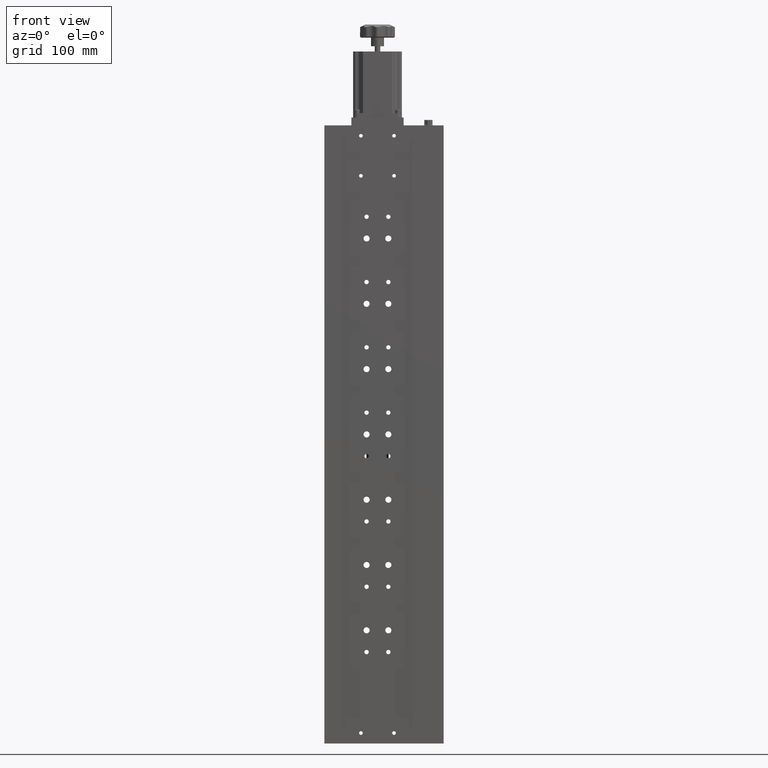
[diagram: clean part render]
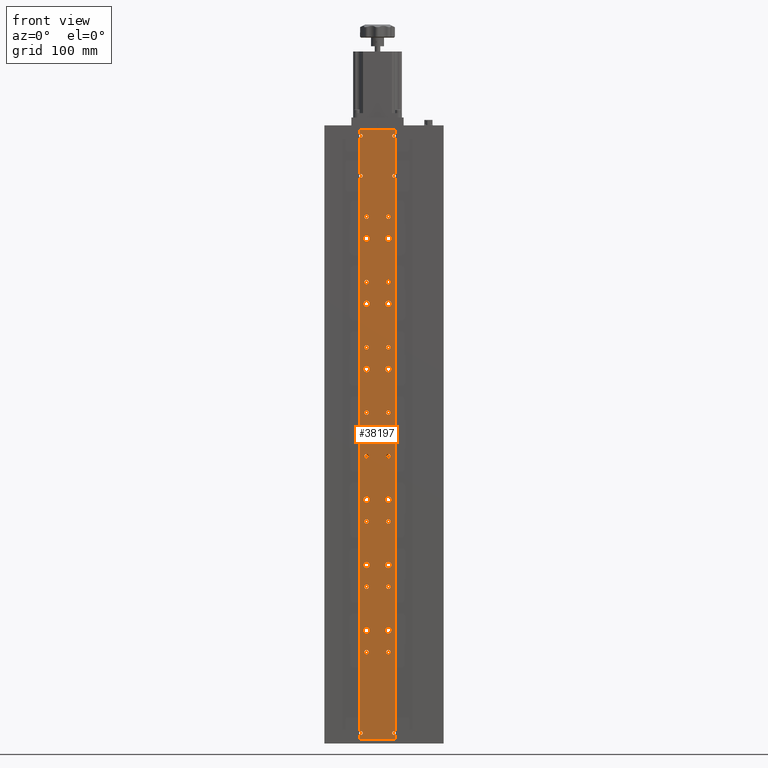
[diagram: same view with one face highlighted and labeled with its STEP entity id]
A machine part, front view. The second image highlights one B-rep face of the part: STEP entity #38197.
In plain terms, the highlighted planar face has unit normal (-0, 1, 0).
Its self-contained STEP definition (entity closure, byte-faithful):
#53 = AXIS2_PLACEMENT_3D ( 'NONE', #22278, #21691, #21295 ) ;
#75 = EDGE_CURVE ( 'NONE', #11428, #8911, #2200, .T. ) ;
#91 = CARTESIAN_POINT ( 'NONE',  ( -148.7356926832512700, -26.67012639631455100, -273.8342676332767400 ) ) ;
#95 = DIRECTION ( 'NONE',  ( -0.0000000000000000000, -1.000000000000000000, -0.0000000000000000000 ) ) ;
#158 = CARTESIAN_POINT ( 'NONE',  ( -148.7356926832512200, -26.67012639631455100, -327.3342676332767400 ) ) ;
#253 = EDGE_CURVE ( 'NONE', #24927, #21946, #33759, .T. ) ;
#277 = CARTESIAN_POINT ( 'NONE',  ( -148.7356926832512700, -26.67012639631455100, -148.8342676332766800 ) ) ;
#328 = DIRECTION ( 'NONE',  ( 0.0000000000000000000, 0.0000000000000000000, 1.000000000000000000 ) ) ;
#390 = CARTESIAN_POINT ( 'NONE',  ( -123.7356926832512400, -26.67012639631455100, 3.665732366723290200 ) ) ;
#443 = EDGE_LOOP ( 'NONE', ( #15177, #3842 ) ) ;
#544 = ORIENTED_EDGE ( 'NONE', *, *, #41521, .F. ) ;
#620 = ORIENTED_EDGE ( 'NONE', *, *, #23272, .T. ) ;
#665 = EDGE_LOOP ( 'NONE', ( #33870, #3079 ) ) ;
#699 = ORIENTED_EDGE ( 'NONE', *, *, #14846, .T. ) ;
#762 = DIRECTION ( 'NONE',  ( 0.0000000000000000000, 0.0000000000000000000, -1.000000000000000000 ) ) ;
#902 = ORIENTED_EDGE ( 'NONE', *, *, #10895, .T. ) ;
#911 = FACE_BOUND ( 'NONE', #34928, .T. ) ;
#994 = CARTESIAN_POINT ( 'NONE',  ( -156.2356926832512400, -26.67012639631455100, 96.01235089798521500 ) ) ;
#996 = DIRECTION ( 'NONE',  ( -0.0000000000000000000, -1.000000000000000000, -0.0000000000000000000 ) ) ;
#999 = AXIS2_PLACEMENT_3D ( 'NONE', #8951, #31300, #12186 ) ;
#1010 = DIRECTION ( 'NONE',  ( 0.0000000000000000000, 1.000000000000000000, 0.0000000000000000000 ) ) ;
#1021 = CIRCLE ( 'NONE', #8508, 2.500000000000002200 ) ;
#1057 = VERTEX_POINT ( 'NONE', #11969 ) ;
#1118 = ORIENTED_EDGE ( 'NONE', *, *, #34228, .T. ) ;
#1190 = DIRECTION ( 'NONE',  ( 0.0000000000000000000, 0.0000000000000000000, -1.000000000000000000 ) ) ;
#1271 = CARTESIAN_POINT ( 'NONE',  ( -123.7356926832513000, -26.67012639631455100, -173.8342676332766800 ) ) ;
#1284 = CIRCLE ( 'NONE', #18701, 3.500000000000003100 ) ;
#1345 = DIRECTION ( 'NONE',  ( 0.0000000000000000000, 0.0000000000000000000, 1.000000000000000000 ) ) ;
#1368 = VERTEX_POINT ( 'NONE', #26072 ) ;
#1376 = ORIENTED_EDGE ( 'NONE', *, *, #33331, .T. ) ;
#1379 = VERTEX_POINT ( 'NONE', #40516 ) ;
#1389 = AXIS2_PLACEMENT_3D ( 'NONE', #26806, #7649, #30076 ) ;
#1398 = DIRECTION ( 'NONE',  ( -0.0000000000000000000, 1.000000000000000000, -0.0000000000000000000 ) ) ;
#1459 = CARTESIAN_POINT ( 'NONE',  ( -117.2356926832512400, -26.67012639631455100, 48.16573236672327600 ) ) ;
#1469 = CARTESIAN_POINT ( 'NONE',  ( -117.2356926832512400, -26.67012639631455100, -591.8342676332765700 ) ) ;
#1476 = CARTESIAN_POINT ( 'NONE',  ( -116.2356926832512600, -26.67012639631455100, 46.31911383546133700 ) ) ;
#1502 = CARTESIAN_POINT ( 'NONE',  ( -156.2356926832512400, -26.67012639631455100, -638.9123164879802100 ) ) ;
#1510 = DIRECTION ( 'NONE',  ( 0.0000000000000000000, 0.0000000000000000000, 1.000000000000000000 ) ) ;
#1559 = VERTEX_POINT ( 'NONE', #28875 ) ;
#1583 = CARTESIAN_POINT ( 'NONE',  ( -123.7356926832512400, -26.67012639631455100, -1.334267633276703800 ) ) ;
#1611 = EDGE_CURVE ( 'NONE', #41240, #2821, #16442, .T. ) ;
#1626 = ORIENTED_EDGE ( 'NONE', *, *, #34588, .T. ) ;
#1771 = CARTESIAN_POINT ( 'NONE',  ( -117.2356926832512400, -26.67012639631455100, 92.06573236672326700 ) ) ;
#1790 = AXIS2_PLACEMENT_3D ( 'NONE', #3799, #26150, #6993 ) ;
#1832 = EDGE_CURVE ( 'NONE', #29612, #22916, #4863, .T. ) ;
#1835 = VERTEX_POINT ( 'NONE', #31451 ) ;
#1896 = FACE_BOUND ( 'NONE', #34371, .T. ) ;
#1934 = EDGE_LOOP ( 'NONE', ( #7785, #18819 ) ) ;
#1935 = CIRCLE ( 'NONE', #1790, 2.500000000000002200 ) ;
#2017 = DIRECTION ( 'NONE',  ( -0.0000000000000000000, 1.000000000000000000, -0.0000000000000000000 ) ) ;
#2200 = CIRCLE ( 'NONE', #33808, 2.099999999999990800 ) ;
#2203 = AXIS2_PLACEMENT_3D ( 'NONE', #31340, #12219, #34559 ) ;
#2249 = CIRCLE ( 'NONE', #34333, 2.500000000000002200 ) ;
#2343 = EDGE_CURVE ( 'NONE', #12844, #1559, #5726, .T. ) ;
#2421 = ORIENTED_EDGE ( 'NONE', *, *, #12542, .T. ) ;
#2444 = CARTESIAN_POINT ( 'NONE',  ( -148.7356926832512700, -26.67012639631455100, 1.165732366723293300 ) ) ;
#2563 = DIRECTION ( 'NONE',  ( 0.0000000000000000000, 0.0000000000000000000, -1.000000000000000000 ) ) ;
#2627 = DIRECTION ( 'NONE',  ( -3.029454718961576000E-018, 1.000000000000000000, 0.0000000000000000000 ) ) ;
#2716 = ORIENTED_EDGE ( 'NONE', *, *, #28717, .T. ) ;
#2721 = DIRECTION ( 'NONE',  ( 0.0000000000000000000, 1.000000000000000000, 0.0000000000000000000 ) ) ;
#2816 = DIRECTION ( 'NONE',  ( 0.0000000000000000000, 0.0000000000000000000, 1.000000000000000000 ) ) ;
#2821 = VERTEX_POINT ( 'NONE', #29269 ) ;
#2832 = CARTESIAN_POINT ( 'NONE',  ( -117.2356926832512400, -26.67012639631455100, 94.16573236672326200 ) ) ;
#2875 = CARTESIAN_POINT ( 'NONE',  ( -148.7356926832512700, -26.67012639631455100, -273.8342676332767400 ) ) ;
#2914 = FACE_BOUND ( 'NONE', #33409, .T. ) ;
#2959 = AXIS2_PLACEMENT_3D ( 'NONE', #15805, #38204, #19038 ) ;
#3035 = EDGE_CURVE ( 'NONE', #31467, #20491, #26598, .T. ) ;
#3079 = ORIENTED_EDGE ( 'NONE', *, *, #32834, .T. ) ;
#3148 = DIRECTION ( 'NONE',  ( 0.0000000000000000000, 0.0000000000000000000, 1.000000000000000000 ) ) ;
#3186 = CIRCLE ( 'NONE', #23383, 3.500000000000003100 ) ;
#3195 = EDGE_CURVE ( 'NONE', #33603, #1368, #3590, .T. ) ;
#3310 = CARTESIAN_POINT ( 'NONE',  ( -148.7356926832512200, -26.67012639631455100, -402.3342676332766800 ) ) ;
#3340 = DIRECTION ( 'NONE',  ( 0.0000000000000000000, 0.0000000000000000000, 1.000000000000000000 ) ) ;
#3348 = DIRECTION ( 'NONE',  ( 0.0000000000000000000, 1.000000000000000000, 0.0000000000000000000 ) ) ;
#3380 = CARTESIAN_POINT ( 'NONE',  ( -155.2356926832512400, -26.67012639631455100, -593.9342676332765900 ) ) ;
#3411 = EDGE_CURVE ( 'NONE', #40526, #14906, #21600, .T. ) ;
#3475 = AXIS2_PLACEMENT_3D ( 'NONE', #27440, #8260, #30668 ) ;
#3477 = DIRECTION ( 'NONE',  ( -0.0000000000000000000, -1.000000000000000000, -0.0000000000000000000 ) ) ;
#3482 = EDGE_CURVE ( 'NONE', #22916, #29612, #28064, .T. ) ;
#3533 = AXIS2_PLACEMENT_3D ( 'NONE', #9157, #9204, #9287 ) ;
#3550 = DIRECTION ( 'NONE',  ( 0.0000000000000000000, 0.0000000000000000000, 1.000000000000000000 ) ) ;
#3573 = CARTESIAN_POINT ( 'NONE',  ( -123.7356926832513000, -26.67012639631455100, -248.8342676332767100 ) ) ;
#3581 = DIRECTION ( 'NONE',  ( -0.0000000000000000000, 1.000000000000000000, -0.0000000000000000000 ) ) ;
#3590 = CIRCLE ( 'NONE', #4303, 2.500000000000002200 ) ;
#3598 = CARTESIAN_POINT ( 'NONE',  ( -123.7356926832512400, -26.67012639631455100, -426.3342676332766800 ) ) ;
#3673 = EDGE_CURVE ( 'NONE', #13408, #21896, #21071, .T. ) ;
#3681 = DIRECTION ( 'NONE',  ( -0.0000000000000000000, 1.000000000000000000, -0.0000000000000000000 ) ) ;
#3799 = CARTESIAN_POINT ( 'NONE',  ( -148.7356926832512700, -26.67012639631455100, -498.8342676332766800 ) ) ;
#3842 = ORIENTED_EDGE ( 'NONE', *, *, #40602, .T. ) ;
#3954 = FACE_BOUND ( 'NONE', #34951, .T. ) ;
#4124 = CIRCLE ( 'NONE', #13544, 2.500000000000002200 ) ;
#4184 = CIRCLE ( 'NONE', #11952, 2.099999999999990800 ) ;
#4217 = CIRCLE ( 'NONE', #34958, 2.099999999999997900 ) ;
#4220 = CARTESIAN_POINT ( 'NONE',  ( -123.7356926832512600, -26.67012639631455100, -271.3342676332767400 ) ) ;
#4261 = DIRECTION ( 'NONE',  ( 0.0000000000000000000, 0.0000000000000000000, 1.000000000000000000 ) ) ;
#4303 = AXIS2_PLACEMENT_3D ( 'NONE', #2875, #37570, #2816 ) ;
#4345 = ORIENTED_EDGE ( 'NONE', *, *, #17281, .F. ) ;
#4350 = EDGE_LOOP ( 'NONE', ( #12988, #1626 ) ) ;
#4371 = CIRCLE ( 'NONE', #32469, 2.500000000000002200 ) ;
#4507 = EDGE_CURVE ( 'NONE', #9306, #37895, #24745, .T. ) ;
#4579 = CARTESIAN_POINT ( 'NONE',  ( -116.2356926832512400, -26.67012639631455100, 92.31911383546132300 ) ) ;
#4654 = EDGE_CURVE ( 'NONE', #10521, #31629, #33242, .T. ) ;
#4656 = DIRECTION ( 'NONE',  ( 0.0000000000000000000, 0.0000000000000000000, 1.000000000000000000 ) ) ;
#4659 = CARTESIAN_POINT ( 'NONE',  ( -200.6106926832512400, -26.67012639631455100, -598.8342676332768000 ) ) ;
#4701 = DIRECTION ( 'NONE',  ( 0.0000000000000000000, 0.0000000000000000000, 1.000000000000000000 ) ) ;
#4726 = VERTEX_POINT ( 'NONE', #6646 ) ;
#4755 = CARTESIAN_POINT ( 'NONE',  ( -148.7356926832512200, -26.67012639631455100, -477.3342676332767400 ) ) ;
#4863 = CIRCLE ( 'NONE', #25144, 3.500000000000003100 ) ;
#4885 = VERTEX_POINT ( 'NONE', #37540 ) ;
#4924 = CIRCLE ( 'NONE', #33664, 2.500000000000002200 ) ;
#4953 = FACE_BOUND ( 'NONE', #33947, .T. ) ;
#4967 = ORIENTED_EDGE ( 'NONE', *, *, #19187, .T. ) ;
#4979 = CIRCLE ( 'NONE', #30520, 2.500000000000002200 ) ;
#5050 = VERTEX_POINT ( 'NONE', #40839 ) ;
#5137 = CARTESIAN_POINT ( 'NONE',  ( -148.7356926832512200, -26.67012639631455100, -177.3342676332767100 ) ) ;
#5251 = CARTESIAN_POINT ( 'NONE',  ( -123.7356926832512600, -26.67012639631455100, -223.8342676332766800 ) ) ;
#5277 = ORIENTED_EDGE ( 'NONE', *, *, #22565, .F. ) ;
#5320 = CARTESIAN_POINT ( 'NONE',  ( -123.7356926832513000, -26.67012639631455100, -177.3342676332767100 ) ) ;
#5454 = VERTEX_POINT ( 'NONE', #20742 ) ;
#5536 = CARTESIAN_POINT ( 'NONE',  ( -123.7356926832512400, -26.67012639631455100, -498.8342676332766800 ) ) ;
#5544 = CARTESIAN_POINT ( 'NONE',  ( -116.2356926832512400, -26.67012639631455100, -638.9123164879802100 ) ) ;
#5557 = ORIENTED_EDGE ( 'NONE', *, *, #29602, .T. ) ;
#5636 = VERTEX_POINT ( 'NONE', #5320 ) ;
#5671 = DIRECTION ( 'NONE',  ( 0.0000000000000000000, 0.0000000000000000000, 1.000000000000000000 ) ) ;
#5680 = EDGE_CURVE ( 'NONE', #21896, #23553, #7970, .T. ) ;
#5709 = AXIS2_PLACEMENT_3D ( 'NONE', #29957, #10773, #33171 ) ;
#5726 = CIRCLE ( 'NONE', #24110, 2.099999999999990800 ) ;
#5830 = AXIS2_PLACEMENT_3D ( 'NONE', #21229, #2017, #24406 ) ;
#5909 = EDGE_LOOP ( 'NONE', ( #11287, #23224 ) ) ;
#5910 = CARTESIAN_POINT ( 'NONE',  ( -123.7356926832512600, -26.67012639631455100, -273.8342676332767400 ) ) ;
#5924 = LINE ( 'NONE', #7337, #21990 ) ;
#5986 = CARTESIAN_POINT ( 'NONE',  ( -155.2356926832512400, -26.67012639631455100, -591.8342676332765700 ) ) ;
#6046 = VERTEX_POINT ( 'NONE', #24623 ) ;
#6060 = CIRCLE ( 'NONE', #7327, 3.500000000000003100 ) ;
#6068 = DIRECTION ( 'NONE',  ( 0.0000000000000000000, 0.0000000000000000000, 1.000000000000000000 ) ) ;
#6088 = DIRECTION ( 'NONE',  ( -0.0000000000000000000, 1.000000000000000000, -0.0000000000000000000 ) ) ;
#6093 = EDGE_CURVE ( 'NONE', #17578, #17966, #27497, .T. ) ;
#6180 = CARTESIAN_POINT ( 'NONE',  ( -148.7356926832512700, -26.67012639631455100, -498.8342676332766800 ) ) ;
#6247 = AXIS2_PLACEMENT_3D ( 'NONE', #25594, #6436, #28802 ) ;
#6357 = CARTESIAN_POINT ( 'NONE',  ( -123.7356926832512600, -26.67012639631455100, -348.8342676332767400 ) ) ;
#6380 = CIRCLE ( 'NONE', #6747, 2.500000000000002200 ) ;
#6392 = DIRECTION ( 'NONE',  ( -0.0000000000000000000, 1.000000000000000000, -0.0000000000000000000 ) ) ;
#6436 = DIRECTION ( 'NONE',  ( -0.0000000000000000000, 1.000000000000000000, -0.0000000000000000000 ) ) ;
#6646 = CARTESIAN_POINT ( 'NONE',  ( -123.7356926832513000, -26.67012639631455100, -27.33426763327669900 ) ) ;
#6679 = CARTESIAN_POINT ( 'NONE',  ( -155.2356926832512400, -26.67012639631455100, -589.7342676332766600 ) ) ;
#6702 = EDGE_CURVE ( 'NONE', #18470, #15842, #6847, .T. ) ;
#6742 = DIRECTION ( 'NONE',  ( 0.0000000000000000000, 0.0000000000000000000, -1.000000000000000000 ) ) ;
#6747 = AXIS2_PLACEMENT_3D ( 'NONE', #5910, #28287, #9146 ) ;
#6761 = VERTEX_POINT ( 'NONE', #28782 ) ;
#6818 = VERTEX_POINT ( 'NONE', #4579 ) ;
#6847 = CIRCLE ( 'NONE', #21131, 3.500000000000003100 ) ;
#6944 = CIRCLE ( 'NONE', #16276, 2.500000000000002200 ) ;
#6993 = DIRECTION ( 'NONE',  ( 0.0000000000000000000, 0.0000000000000000000, 1.000000000000000000 ) ) ;
#7014 = CIRCLE ( 'NONE', #5709, 3.500000000000003100 ) ;
#7061 = DIRECTION ( 'NONE',  ( -0.0000000000000000000, 1.000000000000000000, -0.0000000000000000000 ) ) ;
#7086 = CARTESIAN_POINT ( 'NONE',  ( -117.2356926832512400, -26.67012639631455100, 46.06573236672328200 ) ) ;
#7179 = VECTOR ( 'NONE', #8749, 1000.000000000000000 ) ;
#7277 = CARTESIAN_POINT ( 'NONE',  ( -123.7356926832513000, -26.67012639631455100, -252.3342676332767100 ) ) ;
#7327 = AXIS2_PLACEMENT_3D ( 'NONE', #34598, #34563, #10638 ) ;
#7337 = CARTESIAN_POINT ( 'NONE',  ( -116.2356926832512400, -26.67012639631455100, -638.9123164879802100 ) ) ;
#7508 = DIRECTION ( 'NONE',  ( 0.0000000000000000000, 0.0000000000000000000, 1.000000000000000000 ) ) ;
#7573 = CARTESIAN_POINT ( 'NONE',  ( -148.7356926832512700, -26.67012639631455100, -73.83426763327669600 ) ) ;
#7649 = DIRECTION ( 'NONE',  ( -0.0000000000000000000, 1.000000000000000000, -0.0000000000000000000 ) ) ;
#7785 = ORIENTED_EDGE ( 'NONE', *, *, #36785, .T. ) ;
#7826 = VERTEX_POINT ( 'NONE', #13300 ) ;
#7945 = CARTESIAN_POINT ( 'NONE',  ( -155.2356926832512700, -26.67012639631455100, 92.06573236672326700 ) ) ;
#7970 = CIRCLE ( 'NONE', #17309, 2.099999999999997900 ) ;
#7988 = VERTEX_POINT ( 'NONE', #21113 ) ;
#8106 = AXIS2_PLACEMENT_3D ( 'NONE', #31703, #3581, #18691 ) ;
#8121 = EDGE_CURVE ( 'NONE', #7826, #4885, #4371, .T. ) ;
#8215 = ORIENTED_EDGE ( 'NONE', *, *, #4507, .T. ) ;
#8260 = DIRECTION ( 'NONE',  ( -0.0000000000000000000, 1.000000000000000000, -0.0000000000000000000 ) ) ;
#8316 = EDGE_LOOP ( 'NONE', ( #29229, #37695 ) ) ;
#8360 = CARTESIAN_POINT ( 'NONE',  ( -148.7356926832512200, -26.67012639631455100, -98.83426763327671000 ) ) ;
#8378 = DIRECTION ( 'NONE',  ( -0.0000000000000000000, -1.000000000000000000, -0.0000000000000000000 ) ) ;
#8392 = CIRCLE ( 'NONE', #39548, 2.099999999999990800 ) ;
#8423 = FACE_BOUND ( 'NONE', #30315, .T. ) ;
#8484 = EDGE_CURVE ( 'NONE', #32101, #30683, #2249, .T. ) ;
#8508 = AXIS2_PLACEMENT_3D ( 'NONE', #7573, #30000, #10808 ) ;
#8537 = ORIENTED_EDGE ( 'NONE', *, *, #13867, .T. ) ;
#8638 = VERTEX_POINT ( 'NONE', #24810 ) ;
#8651 = DIRECTION ( 'NONE',  ( 0.0000000000000000000, 0.0000000000000000000, 1.000000000000000000 ) ) ;
#8737 = VECTOR ( 'NONE', #33273, 1000.000000000000000 ) ;
#8742 = DIRECTION ( 'NONE',  ( 0.0000000000000000000, 0.0000000000000000000, 1.000000000000000000 ) ) ;
#8749 = DIRECTION ( 'NONE',  ( 0.0000000000000000000, 0.0000000000000000000, 1.000000000000000000 ) ) ;
#8794 = EDGE_CURVE ( 'NONE', #32915, #5636, #3186, .T. ) ;
#8817 = AXIS2_PLACEMENT_3D ( 'NONE', #22842, #3681, #26037 ) ;
#8830 = CARTESIAN_POINT ( 'NONE',  ( -148.7356926832512200, -26.67012639631455100, -170.3342676332766800 ) ) ;
#8865 = ORIENTED_EDGE ( 'NONE', *, *, #29949, .T. ) ;
#8895 = CARTESIAN_POINT ( 'NONE',  ( -123.7356926832513000, -26.67012639631455100, -395.3342676332766800 ) ) ;
#8911 = VERTEX_POINT ( 'NONE', #38944 ) ;
#8951 = CARTESIAN_POINT ( 'NONE',  ( -123.7356926832513000, -26.67012639631455100, -398.8342676332766800 ) ) ;
#8969 = PLANE ( 'NONE',  #15675 ) ;
#8994 = ORIENTED_EDGE ( 'NONE', *, *, #37692, .T. ) ;
#9134 = DIRECTION ( 'NONE',  ( -0.0000000000000000000, 1.000000000000000000, -0.0000000000000000000 ) ) ;
#9138 = VERTEX_POINT ( 'NONE', #8830 ) ;
#9146 = DIRECTION ( 'NONE',  ( 0.0000000000000000000, 0.0000000000000000000, 1.000000000000000000 ) ) ;
#9157 = CARTESIAN_POINT ( 'NONE',  ( -123.7356926832512400, -26.67012639631455100, 1.165732366723293300 ) ) ;
#9193 = CARTESIAN_POINT ( 'NONE',  ( -148.7356926832512200, -26.67012639631455100, -23.83426763327670300 ) ) ;
#9204 = DIRECTION ( 'NONE',  ( -0.0000000000000000000, 1.000000000000000000, -0.0000000000000000000 ) ) ;
#9214 = DIRECTION ( 'NONE',  ( 0.0000000000000000000, 0.0000000000000000000, 1.000000000000000000 ) ) ;
#9259 = ORIENTED_EDGE ( 'NONE', *, *, #33687, .T. ) ;
#9287 = DIRECTION ( 'NONE',  ( 0.0000000000000000000, 0.0000000000000000000, 1.000000000000000000 ) ) ;
#9306 = VERTEX_POINT ( 'NONE', #38837 ) ;
#9388 = CARTESIAN_POINT ( 'NONE',  ( -148.7356926832512200, -26.67012639631455100, -98.83426763327671000 ) ) ;
#9405 = ORIENTED_EDGE ( 'NONE', *, *, #25949, .T. ) ;
#9435 = DIRECTION ( 'NONE',  ( 0.0000000000000000000, 0.0000000000000000000, 1.000000000000000000 ) ) ;
#9453 = FACE_BOUND ( 'NONE', #5909, .T. ) ;
#9509 = EDGE_CURVE ( 'NONE', #19770, #41451, #15683, .T. ) ;
#9520 = CIRCLE ( 'NONE', #29170, 2.500000000000002200 ) ;
#9555 = EDGE_LOOP ( 'NONE', ( #26406, #18892 ) ) ;
#9594 = ORIENTED_EDGE ( 'NONE', *, *, #26169, .T. ) ;
#9597 = DIRECTION ( 'NONE',  ( 0.0000000000000000000, 0.0000000000000000000, 1.000000000000000000 ) ) ;
#9641 = CARTESIAN_POINT ( 'NONE',  ( -148.7356926832512700, -26.67012639631455100, -73.83426763327669600 ) ) ;
#9705 = AXIS2_PLACEMENT_3D ( 'NONE', #6357, #28733, #9597 ) ;
#9794 = CARTESIAN_POINT ( 'NONE',  ( -123.7356926832512400, -26.67012639631455100, -76.33426763327669600 ) ) ;
#9866 = EDGE_LOOP ( 'NONE', ( #30876, #10828 ) ) ;
#9885 = VERTEX_POINT ( 'NONE', #39724 ) ;
#9973 = AXIS2_PLACEMENT_3D ( 'NONE', #12682, #12729, #13010 ) ;
#10005 = ORIENTED_EDGE ( 'NONE', *, *, #27172, .F. ) ;
#10074 = DIRECTION ( 'NONE',  ( 0.0000000000000000000, 1.000000000000000000, 0.0000000000000000000 ) ) ;
#10194 = EDGE_CURVE ( 'NONE', #31629, #10521, #6060, .T. ) ;
#10246 = CARTESIAN_POINT ( 'NONE',  ( -123.7356926832513000, -26.67012639631455100, -470.3342676332767400 ) ) ;
#10437 = FACE_BOUND ( 'NONE', #40258, .T. ) ;
#10521 = VERTEX_POINT ( 'NONE', #33439 ) ;
#10572 = AXIS2_PLACEMENT_3D ( 'NONE', #22558, #3348, #25717 ) ;
#10608 = DIRECTION ( 'NONE',  ( 0.0000000000000000000, 0.0000000000000000000, 1.000000000000000000 ) ) ;
#10616 = VERTEX_POINT ( 'NONE', #27265 ) ;
#10626 = VERTEX_POINT ( 'NONE', #27060 ) ;
#10633 = CIRCLE ( 'NONE', #12780, 2.500000000000002200 ) ;
#10635 = AXIS2_PLACEMENT_3D ( 'NONE', #15281, #15159, #15023 ) ;
#10638 = DIRECTION ( 'NONE',  ( 0.0000000000000000000, 0.0000000000000000000, 1.000000000000000000 ) ) ;
#10773 = DIRECTION ( 'NONE',  ( 0.0000000000000000000, 1.000000000000000000, 0.0000000000000000000 ) ) ;
#10803 = AXIS2_PLACEMENT_3D ( 'NONE', #11806, #95, #328 ) ;
#10808 = DIRECTION ( 'NONE',  ( 0.0000000000000000000, 0.0000000000000000000, 1.000000000000000000 ) ) ;
#10828 = ORIENTED_EDGE ( 'NONE', *, *, #23107, .T. ) ;
#10844 = DIRECTION ( 'NONE',  ( -0.0000000000000000000, 1.000000000000000000, -0.0000000000000000000 ) ) ;
#10895 = EDGE_CURVE ( 'NONE', #35582, #30382, #10633, .T. ) ;
#10903 = CARTESIAN_POINT ( 'NONE',  ( -148.7356926832512200, -26.67012639631455100, -473.8342676332767400 ) ) ;
#10915 = VERTEX_POINT ( 'NONE', #20111 ) ;
#11093 = DIRECTION ( 'NONE',  ( -0.0000000000000000000, 1.000000000000000000, -0.0000000000000000000 ) ) ;
#11099 = DIRECTION ( 'NONE',  ( -1.000000000000000000, -3.029454718961576000E-018, -0.0000000000000000000 ) ) ;
#11157 = CIRCLE ( 'NONE', #38015, 3.500000000000003100 ) ;
#11211 = ORIENTED_EDGE ( 'NONE', *, *, #20729, .T. ) ;
#11270 = ORIENTED_EDGE ( 'NONE', *, *, #34528, .T. ) ;
#11287 = ORIENTED_EDGE ( 'NONE', *, *, #29156, .T. ) ;
#11298 = CARTESIAN_POINT ( 'NONE',  ( -148.7356926832512700, -26.67012639631455100, -423.8342676332766800 ) ) ;
#11388 = ORIENTED_EDGE ( 'NONE', *, *, #27330, .T. ) ;
#11392 = EDGE_LOOP ( 'NONE', ( #11663, #16347 ) ) ;
#11428 = VERTEX_POINT ( 'NONE', #7945 ) ;
#11448 = FACE_BOUND ( 'NONE', #41424, .T. ) ;
#11576 = AXIS2_PLACEMENT_3D ( 'NONE', #9388, #3477, #1190 ) ;
#11595 = DIRECTION ( 'NONE',  ( -0.0000000000000000000, 1.000000000000000000, -0.0000000000000000000 ) ) ;
#11604 = DIRECTION ( 'NONE',  ( 0.0000000000000000000, 0.0000000000000000000, -1.000000000000000000 ) ) ;
#11663 = ORIENTED_EDGE ( 'NONE', *, *, #20028, .T. ) ;
#11806 = CARTESIAN_POINT ( 'NONE',  ( -123.7356926832513000, -26.67012639631455100, -323.8342676332767400 ) ) ;
#11902 = CIRCLE ( 'NONE', #17482, 3.500000000000003100 ) ;
#11924 = ORIENTED_EDGE ( 'NONE', *, *, #28701, .T. ) ;
#11952 = AXIS2_PLACEMENT_3D ( 'NONE', #41501, #22359, #3148 ) ;
#11960 = AXIS2_PLACEMENT_3D ( 'NONE', #13935, #36267, #17122 ) ;
#11969 = CARTESIAN_POINT ( 'NONE',  ( -148.7356926832512700, -26.67012639631455100, -71.33426763327668100 ) ) ;
#12156 = CARTESIAN_POINT ( 'NONE',  ( -123.7356926832512600, -26.67012639631455100, -346.3342676332767400 ) ) ;
#12186 = DIRECTION ( 'NONE',  ( 0.0000000000000000000, 0.0000000000000000000, 1.000000000000000000 ) ) ;
#12219 = DIRECTION ( 'NONE',  ( 0.0000000000000000000, 1.000000000000000000, 0.0000000000000000000 ) ) ;
#12380 = ORIENTED_EDGE ( 'NONE', *, *, #21088, .T. ) ;
#12449 = DIRECTION ( 'NONE',  ( 0.0000000000000000000, 0.0000000000000000000, -1.000000000000000000 ) ) ;
#12492 = FACE_BOUND ( 'NONE', #20373, .T. ) ;
#12519 = CARTESIAN_POINT ( 'NONE',  ( -148.7356926832512200, -26.67012639631455100, -173.8342676332766800 ) ) ;
#12530 = CIRCLE ( 'NONE', #25262, 2.500000000000002200 ) ;
#12540 = DIRECTION ( 'NONE',  ( 0.0000000000000000000, 1.000000000000000000, 0.0000000000000000000 ) ) ;
#12542 = EDGE_CURVE ( 'NONE', #26899, #37912, #28790, .T. ) ;
#12553 = CARTESIAN_POINT ( 'NONE',  ( -155.2356926832512700, -26.67012639631455100, 94.16573236672326200 ) ) ;
#12682 = CARTESIAN_POINT ( 'NONE',  ( -148.7356926832512200, -26.67012639631455100, -248.8342676332767100 ) ) ;
#12729 = DIRECTION ( 'NONE',  ( 0.0000000000000000000, 1.000000000000000000, 0.0000000000000000000 ) ) ;
#12747 = CIRCLE ( 'NONE', #24564, 3.499999999999999600 ) ;
#12780 = AXIS2_PLACEMENT_3D ( 'NONE', #19906, #19874, #19824 ) ;
#12844 = VERTEX_POINT ( 'NONE', #17512 ) ;
#12872 = AXIS2_PLACEMENT_3D ( 'NONE', #25256, #6088, #28496 ) ;
#12880 = DIRECTION ( 'NONE',  ( 0.0000000000000000000, 0.0000000000000000000, 1.000000000000000000 ) ) ;
#12920 = VECTOR ( 'NONE', #40463, 1000.000000000000000 ) ;
#12948 = VERTEX_POINT ( 'NONE', #40277 ) ;
#12980 = CARTESIAN_POINT ( 'NONE',  ( -117.2356926832512400, -26.67012639631455100, -591.8342676332765700 ) ) ;
#12988 = ORIENTED_EDGE ( 'NONE', *, *, #25455, .T. ) ;
#13010 = DIRECTION ( 'NONE',  ( 0.0000000000000000000, 0.0000000000000000000, 1.000000000000000000 ) ) ;
#13026 = DIRECTION ( 'NONE',  ( -0.0000000000000000000, -1.000000000000000000, -0.0000000000000000000 ) ) ;
#13044 = DIRECTION ( 'NONE',  ( -0.0000000000000000000, 1.000000000000000000, -0.0000000000000000000 ) ) ;
#13066 = CIRCLE ( 'NONE', #5830, 2.500000000000002200 ) ;
#13100 = VERTEX_POINT ( 'NONE', #21994 ) ;
#13113 = CARTESIAN_POINT ( 'NONE',  ( -148.7356926832512200, -26.67012639631455100, -398.8342676332766800 ) ) ;
#13201 = CARTESIAN_POINT ( 'NONE',  ( -123.7356926832512400, -26.67012639631455100, -73.83426763327669600 ) ) ;
#13241 = DIRECTION ( 'NONE',  ( -0.0000000000000000000, -1.000000000000000000, -0.0000000000000000000 ) ) ;
#13300 = CARTESIAN_POINT ( 'NONE',  ( -148.7356926832512700, -26.67012639631455100, -426.3342676332766800 ) ) ;
#13408 = VERTEX_POINT ( 'NONE', #7086 ) ;
#13422 = DIRECTION ( 'NONE',  ( -0.0000000000000000000, 1.000000000000000000, -0.0000000000000000000 ) ) ;
#13455 = VERTEX_POINT ( 'NONE', #36070 ) ;
#13457 = ORIENTED_EDGE ( 'NONE', *, *, #9509, .T. ) ;
#13544 = AXIS2_PLACEMENT_3D ( 'NONE', #9641, #32023, #12880 ) ;
#13654 = CARTESIAN_POINT ( 'NONE',  ( -123.7356926832512600, -26.67012639631455100, -148.8342676332766800 ) ) ;
#13860 = CIRCLE ( 'NONE', #2203, 3.500000000000003100 ) ;
#13867 = EDGE_CURVE ( 'NONE', #30382, #35582, #21223, .T. ) ;
#13876 = EDGE_CURVE ( 'NONE', #29843, #10626, #17195, .T. ) ;
#13935 = CARTESIAN_POINT ( 'NONE',  ( -123.7356926832512400, -26.67012639631455100, -73.83426763327669600 ) ) ;
#13985 = ORIENTED_EDGE ( 'NONE', *, *, #23581, .T. ) ;
#14091 = CIRCLE ( 'NONE', #36580, 2.099999999999990800 ) ;
#14167 = DIRECTION ( 'NONE',  ( 0.0000000000000000000, 0.0000000000000000000, 1.000000000000000000 ) ) ;
#14174 = AXIS2_PLACEMENT_3D ( 'NONE', #29219, #10074, #32457 ) ;
#14292 = AXIS2_PLACEMENT_3D ( 'NONE', #15069, #37417, #18243 ) ;
#14396 = DIRECTION ( 'NONE',  ( -0.0000000000000000000, 1.000000000000000000, -0.0000000000000000000 ) ) ;
#14431 = ORIENTED_EDGE ( 'NONE', *, *, #30808, .T. ) ;
#14496 = FACE_BOUND ( 'NONE', #665, .T. ) ;
#14507 = CIRCLE ( 'NONE', #14174, 3.500000000000003100 ) ;
#14557 = EDGE_CURVE ( 'NONE', #5636, #32915, #7014, .T. ) ;
#14564 = DIRECTION ( 'NONE',  ( 0.0000000000000000000, 0.0000000000000000000, 1.000000000000000000 ) ) ;
#14642 = AXIS2_PLACEMENT_3D ( 'NONE', #37332, #18167, #40557 ) ;
#14665 = VECTOR ( 'NONE', #22227, 1000.000000000000000 ) ;
#14752 = CARTESIAN_POINT ( 'NONE',  ( -116.2356926832512400, -26.67012639631455100, -638.9123164879802100 ) ) ;
#14763 = AXIS2_PLACEMENT_3D ( 'NONE', #12553, #34857, #15725 ) ;
#14818 = EDGE_CURVE ( 'NONE', #27427, #37993, #16008, .T. ) ;
#14846 = EDGE_CURVE ( 'NONE', #4726, #39274, #40512, .T. ) ;
#14906 = VERTEX_POINT ( 'NONE', #390 ) ;
#14958 = CARTESIAN_POINT ( 'NONE',  ( -123.7356926832512400, -26.67012639631455100, -498.8342676332766800 ) ) ;
#15023 = DIRECTION ( 'NONE',  ( 0.0000000000000000000, 0.0000000000000000000, 1.000000000000000000 ) ) ;
#15069 = CARTESIAN_POINT ( 'NONE',  ( -123.7356926832513000, -26.67012639631455100, -398.8342676332766800 ) ) ;
#15151 = ORIENTED_EDGE ( 'NONE', *, *, #10194, .F. ) ;
#15159 = DIRECTION ( 'NONE',  ( 0.0000000000000000000, 1.000000000000000000, 0.0000000000000000000 ) ) ;
#15177 = ORIENTED_EDGE ( 'NONE', *, *, #6093, .T. ) ;
#15281 = CARTESIAN_POINT ( 'NONE',  ( -148.7356926832512200, -26.67012639631455100, -323.8342676332767400 ) ) ;
#15317 = ORIENTED_EDGE ( 'NONE', *, *, #39276, .T. ) ;
#15442 = EDGE_CURVE ( 'NONE', #12948, #29843, #8392, .T. ) ;
#15675 = AXIS2_PLACEMENT_3D ( 'NONE', #21848, #2627, #25036 ) ;
#15683 = CIRCLE ( 'NONE', #53, 3.500000000000003100 ) ;
#15698 = DIRECTION ( 'NONE',  ( 0.0000000000000000000, 0.0000000000000000000, -1.000000000000000000 ) ) ;
#15710 = CARTESIAN_POINT ( 'NONE',  ( -123.7356926832512400, -26.67012639631455100, -496.3342676332766800 ) ) ;
#15725 = DIRECTION ( 'NONE',  ( 0.0000000000000000000, 0.0000000000000000000, 1.000000000000000000 ) ) ;
#15805 = CARTESIAN_POINT ( 'NONE',  ( -123.7356926832512400, -26.67012639631455100, -423.8342676332766800 ) ) ;
#15842 = VERTEX_POINT ( 'NONE', #10246 ) ;
#15858 = ORIENTED_EDGE ( 'NONE', *, *, #27485, .T. ) ;
#15916 = VERTEX_POINT ( 'NONE', #7277 ) ;
#15945 = CARTESIAN_POINT ( 'NONE',  ( -123.7356926832513000, -26.67012639631455100, -20.33426763327670300 ) ) ;
#15956 = FACE_BOUND ( 'NONE', #27035, .T. ) ;
#16008 = CIRCLE ( 'NONE', #6247, 2.500000000000002200 ) ;
#16053 = ORIENTED_EDGE ( 'NONE', *, *, #2343, .T. ) ;
#16150 = CARTESIAN_POINT ( 'NONE',  ( -148.7356926832512700, -26.67012639631455100, -1.334267633276703800 ) ) ;
#16172 = DIRECTION ( 'NONE',  ( 0.0000000000000000000, 0.0000000000000000000, 1.000000000000000000 ) ) ;
#16197 = EDGE_LOOP ( 'NONE', ( #15858, #1376 ) ) ;
#16261 = DIRECTION ( 'NONE',  ( 0.0000000000000000000, 0.0000000000000000000, 1.000000000000000000 ) ) ;
#16276 = AXIS2_PLACEMENT_3D ( 'NONE', #32170, #13044, #35373 ) ;
#16300 = DIRECTION ( 'NONE',  ( 0.0000000000000000000, 0.0000000000000000000, 1.000000000000000000 ) ) ;
#16305 = DIRECTION ( 'NONE',  ( -0.0000000000000000000, 1.000000000000000000, -0.0000000000000000000 ) ) ;
#16347 = ORIENTED_EDGE ( 'NONE', *, *, #17199, .T. ) ;
#16356 = EDGE_CURVE ( 'NONE', #9138, #35421, #35940, .T. ) ;
#16398 = CARTESIAN_POINT ( 'NONE',  ( -148.7356926832512700, -26.67012639631455100, -346.3342676332767400 ) ) ;
#16399 = DIRECTION ( 'NONE',  ( 0.0000000000000000000, 0.0000000000000000000, 1.000000000000000000 ) ) ;
#16406 = CARTESIAN_POINT ( 'NONE',  ( -156.2356926832512400, -26.67012639631455100, 50.01235089798522200 ) ) ;
#16442 = CIRCLE ( 'NONE', #8106, 2.099999999999997900 ) ;
#16467 = CARTESIAN_POINT ( 'NONE',  ( -148.7356926832512700, -26.67012639631455100, -423.8342676332766800 ) ) ;
#16521 = CARTESIAN_POINT ( 'NONE',  ( -117.2356926832512400, -26.67012639631455100, 48.16573236672327600 ) ) ;
#16606 = AXIS2_PLACEMENT_3D ( 'NONE', #5536, #27910, #8742 ) ;
#16790 = EDGE_CURVE ( 'NONE', #21731, #1835, #23849, .T. ) ;
#16801 = CARTESIAN_POINT ( 'NONE',  ( -117.2356926832512400, -26.67012639631455100, 94.16573236672326200 ) ) ;
#16830 = DIRECTION ( 'NONE',  ( 0.0000000000000000000, 0.0000000000000000000, 1.000000000000000000 ) ) ;
#16961 = VERTEX_POINT ( 'NONE', #21551 ) ;
#16969 = FACE_BOUND ( 'NONE', #22231, .T. ) ;
#17044 = CARTESIAN_POINT ( 'NONE',  ( -123.7356926832512600, -26.67012639631455100, -273.8342676332767400 ) ) ;
#17091 = CARTESIAN_POINT ( 'NONE',  ( -155.2356926832512400, -26.67012639631455100, -591.8342676332765700 ) ) ;
#17122 = DIRECTION ( 'NONE',  ( 0.0000000000000000000, 0.0000000000000000000, 1.000000000000000000 ) ) ;
#17195 = CIRCLE ( 'NONE', #22595, 2.099999999999990800 ) ;
#17199 = EDGE_CURVE ( 'NONE', #13455, #36447, #24768, .T. ) ;
#17281 = EDGE_CURVE ( 'NONE', #21946, #24927, #1284, .T. ) ;
#17309 = AXIS2_PLACEMENT_3D ( 'NONE', #1459, #1398, #1345 ) ;
#17482 = AXIS2_PLACEMENT_3D ( 'NONE', #13113, #35457, #16300 ) ;
#17512 = CARTESIAN_POINT ( 'NONE',  ( -117.2356926832512400, -26.67012639631455100, 96.26573236672325600 ) ) ;
#17553 = ORIENTED_EDGE ( 'NONE', *, *, #35324, .T. ) ;
#17578 = VERTEX_POINT ( 'NONE', #28916 ) ;
#17580 = ORIENTED_EDGE ( 'NONE', *, *, #20833, .T. ) ;
#17697 = LINE ( 'NONE', #40908, #33719 ) ;
#17701 = DIRECTION ( 'NONE',  ( 0.0000000000000000000, 1.000000000000000000, 0.0000000000000000000 ) ) ;
#17757 = EDGE_CURVE ( 'NONE', #27394, #20898, #36781, .T. ) ;
#17770 = ORIENTED_EDGE ( 'NONE', *, *, #5680, .T. ) ;
#17815 = EDGE_CURVE ( 'NONE', #23553, #6818, #32750, .T. ) ;
#17835 = EDGE_LOOP ( 'NONE', ( #8994, #27595 ) ) ;
#17956 = FACE_BOUND ( 'NONE', #443, .T. ) ;
#17966 = VERTEX_POINT ( 'NONE', #158 ) ;
#18109 = CARTESIAN_POINT ( 'NONE',  ( -148.7356926832512200, -26.67012639631455100, -323.8342676332767400 ) ) ;
#18130 = DIRECTION ( 'NONE',  ( 0.0000000000000000000, 0.0000000000000000000, 1.000000000000000000 ) ) ;
#18167 = DIRECTION ( 'NONE',  ( 0.0000000000000000000, 1.000000000000000000, 0.0000000000000000000 ) ) ;
#18243 = DIRECTION ( 'NONE',  ( 0.0000000000000000000, 0.0000000000000000000, 1.000000000000000000 ) ) ;
#18463 = VERTEX_POINT ( 'NONE', #16398 ) ;
#18470 = VERTEX_POINT ( 'NONE', #19615 ) ;
#18483 = CARTESIAN_POINT ( 'NONE',  ( -148.7356926832512200, -26.67012639631455100, -95.33426763327671000 ) ) ;
#18573 = EDGE_LOOP ( 'NONE', ( #13985, #34671 ) ) ;
#18691 = DIRECTION ( 'NONE',  ( 0.0000000000000000000, 0.0000000000000000000, 1.000000000000000000 ) ) ;
#18701 = AXIS2_PLACEMENT_3D ( 'NONE', #8360, #30756, #11604 ) ;
#18771 = ORIENTED_EDGE ( 'NONE', *, *, #17815, .T. ) ;
#18794 = CARTESIAN_POINT ( 'NONE',  ( -148.7356926832512700, -26.67012639631455100, -76.33426763327669600 ) ) ;
#18819 = ORIENTED_EDGE ( 'NONE', *, *, #3195, .T. ) ;
#18892 = ORIENTED_EDGE ( 'NONE', *, *, #23205, .T. ) ;
#18958 = FACE_BOUND ( 'NONE', #9555, .T. ) ;
#18992 = VERTEX_POINT ( 'NONE', #3310 ) ;
#19038 = DIRECTION ( 'NONE',  ( 0.0000000000000000000, 0.0000000000000000000, 1.000000000000000000 ) ) ;
#19187 = EDGE_CURVE ( 'NONE', #10626, #24534, #5924, .T. ) ;
#19615 = CARTESIAN_POINT ( 'NONE',  ( -123.7356926832513000, -26.67012639631455100, -477.3342676332767400 ) ) ;
#19770 = VERTEX_POINT ( 'NONE', #30279 ) ;
#19824 = DIRECTION ( 'NONE',  ( 0.0000000000000000000, 0.0000000000000000000, 1.000000000000000000 ) ) ;
#19874 = DIRECTION ( 'NONE',  ( -0.0000000000000000000, 1.000000000000000000, -0.0000000000000000000 ) ) ;
#19906 = CARTESIAN_POINT ( 'NONE',  ( -123.7356926832512600, -26.67012639631455100, -348.8342676332767400 ) ) ;
#19965 = FACE_BOUND ( 'NONE', #16197, .T. ) ;
#20016 = DIRECTION ( 'NONE',  ( 0.0000000000000000000, 0.0000000000000000000, 1.000000000000000000 ) ) ;
#20028 = EDGE_CURVE ( 'NONE', #36447, #13455, #6380, .T. ) ;
#20045 = CIRCLE ( 'NONE', #3475, 2.500000000000002200 ) ;
#20111 = CARTESIAN_POINT ( 'NONE',  ( -155.2356926832512700, -26.67012639631455100, 96.26573236672325600 ) ) ;
#20142 = AXIS2_PLACEMENT_3D ( 'NONE', #91, #22551, #3340 ) ;
#20176 = CARTESIAN_POINT ( 'NONE',  ( -148.7356926832512200, -26.67012639631455100, -173.8342676332766800 ) ) ;
#20273 = DIRECTION ( 'NONE',  ( 0.0000000000000000000, 0.0000000000000000000, 1.000000000000000000 ) ) ;
#20300 = CIRCLE ( 'NONE', #20142, 2.500000000000002200 ) ;
#20373 = EDGE_LOOP ( 'NONE', ( #20986, #15317 ) ) ;
#20405 = VERTEX_POINT ( 'NONE', #24760 ) ;
#20465 = EDGE_CURVE ( 'NONE', #1379, #15916, #13860, .T. ) ;
#20491 = VERTEX_POINT ( 'NONE', #25049 ) ;
#20596 = VERTEX_POINT ( 'NONE', #9794 ) ;
#20729 = EDGE_CURVE ( 'NONE', #41451, #19770, #32279, .T. ) ;
#20742 = CARTESIAN_POINT ( 'NONE',  ( -148.7356926832512700, -26.67012639631455100, -151.3342676332766800 ) ) ;
#20832 = VECTOR ( 'NONE', #24802, 1000.000000000000000 ) ;
#20833 = EDGE_CURVE ( 'NONE', #24534, #13408, #4217, .T. ) ;
#20898 = VERTEX_POINT ( 'NONE', #40537 ) ;
#20977 = ORIENTED_EDGE ( 'NONE', *, *, #3482, .T. ) ;
#20986 = ORIENTED_EDGE ( 'NONE', *, *, #27099, .T. ) ;
#20990 = FACE_BOUND ( 'NONE', #18573, .T. ) ;
#21022 = AXIS2_PLACEMENT_3D ( 'NONE', #30253, #11093, #33493 ) ;
#21071 = CIRCLE ( 'NONE', #37842, 2.099999999999997900 ) ;
#21088 = EDGE_CURVE ( 'NONE', #8638, #12948, #4184, .T. ) ;
#21113 = CARTESIAN_POINT ( 'NONE',  ( -148.7356926832512700, -26.67012639631455100, -496.3342676332766800 ) ) ;
#21121 = ORIENTED_EDGE ( 'NONE', *, *, #75, .T. ) ;
#21131 = AXIS2_PLACEMENT_3D ( 'NONE', #41122, #13026, #8651 ) ;
#21223 = CIRCLE ( 'NONE', #9705, 2.500000000000002200 ) ;
#21229 = CARTESIAN_POINT ( 'NONE',  ( -123.7356926832512400, -26.67012639631455100, -423.8342676332766800 ) ) ;
#21295 = DIRECTION ( 'NONE',  ( 0.0000000000000000000, 0.0000000000000000000, 1.000000000000000000 ) ) ;
#21346 = DIRECTION ( 'NONE',  ( 0.0000000000000000000, 0.0000000000000000000, 1.000000000000000000 ) ) ;
#21551 = CARTESIAN_POINT ( 'NONE',  ( -148.7356926832512200, -26.67012639631455100, -20.33426763327670300 ) ) ;
#21583 = LINE ( 'NONE', #4659, #37580 ) ;
#21600 = CIRCLE ( 'NONE', #3533, 2.499999999999996900 ) ;
#21691 = DIRECTION ( 'NONE',  ( 0.0000000000000000000, 1.000000000000000000, 0.0000000000000000000 ) ) ;
#21728 = EDGE_LOOP ( 'NONE', ( #5277, #26056 ) ) ;
#21731 = VERTEX_POINT ( 'NONE', #39331 ) ;
#21744 = CARTESIAN_POINT ( 'NONE',  ( -156.2356926832512400, -26.67012639631455100, -638.9123164879802100 ) ) ;
#21848 = CARTESIAN_POINT ( 'NONE',  ( -200.6106926832512400, -26.67012639631455100, -598.8342676332768000 ) ) ;
#21896 = VERTEX_POINT ( 'NONE', #24615 ) ;
#21946 = VERTEX_POINT ( 'NONE', #18483 ) ;
#21950 = VERTEX_POINT ( 'NONE', #24896 ) ;
#21990 = VECTOR ( 'NONE', #10608, 1000.000000000000000 ) ;
#21994 = CARTESIAN_POINT ( 'NONE',  ( -148.7356926832512700, -26.67012639631455100, -501.3342676332766800 ) ) ;
#22065 = EDGE_CURVE ( 'NONE', #18463, #39309, #6944, .T. ) ;
#22145 = EDGE_CURVE ( 'NONE', #9885, #6046, #14507, .T. ) ;
#22191 = ORIENTED_EDGE ( 'NONE', *, *, #25098, .T. ) ;
#22227 = DIRECTION ( 'NONE',  ( 0.0000000000000000000, 0.0000000000000000000, 1.000000000000000000 ) ) ;
#22231 = EDGE_LOOP ( 'NONE', ( #40280, #1118 ) ) ;
#22278 = CARTESIAN_POINT ( 'NONE',  ( -148.7356926832512200, -26.67012639631455100, -473.8342676332767400 ) ) ;
#22337 = VERTEX_POINT ( 'NONE', #32886 ) ;
#22359 = DIRECTION ( 'NONE',  ( -0.0000000000000000000, 1.000000000000000000, -0.0000000000000000000 ) ) ;
#22551 = DIRECTION ( 'NONE',  ( -0.0000000000000000000, 1.000000000000000000, -0.0000000000000000000 ) ) ;
#22558 = CARTESIAN_POINT ( 'NONE',  ( -123.7356926832513000, -26.67012639631455100, -23.83426763327670300 ) ) ;
#22565 = EDGE_CURVE ( 'NONE', #34124, #6761, #38137, .T. ) ;
#22595 = AXIS2_PLACEMENT_3D ( 'NONE', #12980, #35302, #16172 ) ;
#22720 = DIRECTION ( 'NONE',  ( -0.0000000000000000000, 1.000000000000000000, -0.0000000000000000000 ) ) ;
#22842 = CARTESIAN_POINT ( 'NONE',  ( -148.7356926832512700, -26.67012639631455100, -148.8342676332766800 ) ) ;
#22916 = VERTEX_POINT ( 'NONE', #23322 ) ;
#22979 = FACE_BOUND ( 'NONE', #1934, .T. ) ;
#22988 = CIRCLE ( 'NONE', #28124, 2.500000000000002200 ) ;
#23008 = ORIENTED_EDGE ( 'NONE', *, *, #3411, .T. ) ;
#23107 = EDGE_CURVE ( 'NONE', #26572, #27830, #13066, .T. ) ;
#23205 = EDGE_CURVE ( 'NONE', #20898, #27394, #33561, .T. ) ;
#23210 = EDGE_CURVE ( 'NONE', #20491, #31467, #25025, .T. ) ;
#23224 = ORIENTED_EDGE ( 'NONE', *, *, #31235, .T. ) ;
#23272 = EDGE_CURVE ( 'NONE', #41499, #12844, #28535, .T. ) ;
#23322 = CARTESIAN_POINT ( 'NONE',  ( -148.7356926832512200, -26.67012639631455100, -252.3342676332767100 ) ) ;
#23345 = AXIS2_PLACEMENT_3D ( 'NONE', #32572, #13422, #35744 ) ;
#23350 = CARTESIAN_POINT ( 'NONE',  ( -117.2356926832512400, -26.67012639631455100, -589.7342676332766600 ) ) ;
#23383 = AXIS2_PLACEMENT_3D ( 'NONE', #1271, #1010, #762 ) ;
#23395 = DIRECTION ( 'NONE',  ( 0.0000000000000000000, 0.0000000000000000000, -1.000000000000000000 ) ) ;
#23406 = EDGE_CURVE ( 'NONE', #16961, #28787, #36544, .T. ) ;
#23525 = ORIENTED_EDGE ( 'NONE', *, *, #36397, .F. ) ;
#23553 = VERTEX_POINT ( 'NONE', #40049 ) ;
#23581 = EDGE_CURVE ( 'NONE', #37993, #27427, #20045, .T. ) ;
#23587 = ORIENTED_EDGE ( 'NONE', *, *, #29884, .T. ) ;
#23806 = ORIENTED_EDGE ( 'NONE', *, *, #41121, .T. ) ;
#23849 = LINE ( 'NONE', #1502, #40873 ) ;
#23856 = DIRECTION ( 'NONE',  ( -0.0000000000000000000, 1.000000000000000000, -0.0000000000000000000 ) ) ;
#23900 = DIRECTION ( 'NONE',  ( 0.0000000000000000000, 0.0000000000000000000, -1.000000000000000000 ) ) ;
#24002 = ORIENTED_EDGE ( 'NONE', *, *, #1611, .T. ) ;
#24031 = ORIENTED_EDGE ( 'NONE', *, *, #36193, .T. ) ;
#24110 = AXIS2_PLACEMENT_3D ( 'NONE', #38331, #37927, #36516 ) ;
#24164 = AXIS2_PLACEMENT_3D ( 'NONE', #9193, #31583, #12449 ) ;
#24260 = DIRECTION ( 'NONE',  ( -0.0000000000000000000, 1.000000000000000000, -0.0000000000000000000 ) ) ;
#24286 = CIRCLE ( 'NONE', #2959, 2.500000000000002200 ) ;
#24340 = AXIS2_PLACEMENT_3D ( 'NONE', #33559, #14396, #36782 ) ;
#24406 = DIRECTION ( 'NONE',  ( 0.0000000000000000000, 0.0000000000000000000, 1.000000000000000000 ) ) ;
#24433 = FACE_BOUND ( 'NONE', #21728, .T. ) ;
#24534 = VERTEX_POINT ( 'NONE', #1476 ) ;
#24564 = AXIS2_PLACEMENT_3D ( 'NONE', #31656, #12540, #34844 ) ;
#24615 = CARTESIAN_POINT ( 'NONE',  ( -117.2356926832512400, -26.67012639631455100, 50.26573236672327700 ) ) ;
#24623 = CARTESIAN_POINT ( 'NONE',  ( -123.7356926832513000, -26.67012639631455100, -95.33426763327671000 ) ) ;
#24745 = LINE ( 'NONE', #31199, #8737 ) ;
#24760 = CARTESIAN_POINT ( 'NONE',  ( -148.7356926832512700, -26.67012639631455100, -146.3342676332766800 ) ) ;
#24768 = CIRCLE ( 'NONE', #38785, 2.500000000000002200 ) ;
#24780 = CARTESIAN_POINT ( 'NONE',  ( -123.7356926832512400, -26.67012639631455100, -71.33426763327668100 ) ) ;
#24802 = DIRECTION ( 'NONE',  ( -1.000000000000000000, -3.029454718961576000E-018, -0.0000000000000000000 ) ) ;
#24810 = CARTESIAN_POINT ( 'NONE',  ( -116.2356926832512600, -26.67012639631455100, -593.6808861645386100 ) ) ;
#24816 = DIRECTION ( 'NONE',  ( -0.0000000000000000000, 1.000000000000000000, -0.0000000000000000000 ) ) ;
#24896 = CARTESIAN_POINT ( 'NONE',  ( -155.2356926832512400, -26.67012639631455100, 46.06573236672328200 ) ) ;
#24927 = VERTEX_POINT ( 'NONE', #33544 ) ;
#24946 = ORIENTED_EDGE ( 'NONE', *, *, #6702, .F. ) ;
#24957 = CARTESIAN_POINT ( 'NONE',  ( -123.7356926832512600, -26.67012639631455100, -226.3342676332766800 ) ) ;
#25025 = CIRCLE ( 'NONE', #25148, 2.499999999999996900 ) ;
#25036 = DIRECTION ( 'NONE',  ( -1.000000000000000000, -3.029454718961576000E-018, 0.0000000000000000000 ) ) ;
#25049 = CARTESIAN_POINT ( 'NONE',  ( -148.7356926832512700, -26.67012639631455100, 3.665732366723290200 ) ) ;
#25098 = EDGE_CURVE ( 'NONE', #8911, #41240, #17697, .T. ) ;
#25103 = EDGE_LOOP ( 'NONE', ( #39887, #11388 ) ) ;
#25144 = AXIS2_PLACEMENT_3D ( 'NONE', #34981, #2721, #26692 ) ;
#25148 = AXIS2_PLACEMENT_3D ( 'NONE', #2444, #24816, #5671 ) ;
#25242 = DIRECTION ( 'NONE',  ( -0.0000000000000000000, 1.000000000000000000, -0.0000000000000000000 ) ) ;
#25256 = CARTESIAN_POINT ( 'NONE',  ( -155.2356926832512400, -26.67012639631455100, -591.8342676332765700 ) ) ;
#25262 = AXIS2_PLACEMENT_3D ( 'NONE', #6180, #28589, #9435 ) ;
#25446 = FACE_BOUND ( 'NONE', #36225, .T. ) ;
#25455 = EDGE_CURVE ( 'NONE', #5050, #33824, #31059, .T. ) ;
#25488 = CARTESIAN_POINT ( 'NONE',  ( -148.7356926832512700, -26.67012639631455100, -226.3342676332766800 ) ) ;
#25491 = AXIS2_PLACEMENT_3D ( 'NONE', #26222, #7061, #29483 ) ;
#25514 = ORIENTED_EDGE ( 'NONE', *, *, #8121, .T. ) ;
#25569 = CARTESIAN_POINT ( 'NONE',  ( -148.7356926832512700, -26.67012639631455100, -351.3342676332767400 ) ) ;
#25594 = CARTESIAN_POINT ( 'NONE',  ( -148.7356926832512700, -26.67012639631455100, -223.8342676332766800 ) ) ;
#25614 = EDGE_LOOP ( 'NONE', ( #39872, #23587, #32423, #9259, #2421, #10005, #5557, #12380, #39716, #27902, #4967, #17580, #27547, #17770, #18771, #9405, #620, #16053, #32944, #32399, #8215, #24031, #8865, #21121, #22191, #24002, #2716, #17553 ) ) ;
#25717 = DIRECTION ( 'NONE',  ( 0.0000000000000000000, 0.0000000000000000000, -1.000000000000000000 ) ) ;
#25757 = AXIS2_PLACEMENT_3D ( 'NONE', #36884, #17701, #40086 ) ;
#25926 = DIRECTION ( 'NONE',  ( 0.0000000000000000000, 1.000000000000000000, 0.0000000000000000000 ) ) ;
#25949 = EDGE_CURVE ( 'NONE', #6818, #41499, #14091, .T. ) ;
#26037 = DIRECTION ( 'NONE',  ( 0.0000000000000000000, 0.0000000000000000000, 1.000000000000000000 ) ) ;
#26056 = ORIENTED_EDGE ( 'NONE', *, *, #31282, .F. ) ;
#26072 = CARTESIAN_POINT ( 'NONE',  ( -148.7356926832512700, -26.67012639631455100, -271.3342676332767400 ) ) ;
#26150 = DIRECTION ( 'NONE',  ( -0.0000000000000000000, 1.000000000000000000, -0.0000000000000000000 ) ) ;
#26169 = EDGE_CURVE ( 'NONE', #4885, #7826, #36036, .T. ) ;
#26222 = CARTESIAN_POINT ( 'NONE',  ( -155.2356926832512400, -26.67012639631455100, 48.16573236672327600 ) ) ;
#26406 = ORIENTED_EDGE ( 'NONE', *, *, #17757, .T. ) ;
#26455 = FACE_BOUND ( 'NONE', #38311, .T. ) ;
#26548 = AXIS2_PLACEMENT_3D ( 'NONE', #36139, #36048, #36083 ) ;
#26572 = VERTEX_POINT ( 'NONE', #3598 ) ;
#26585 = CARTESIAN_POINT ( 'NONE',  ( -156.2356926832512700, -26.67012639631455100, -598.8342676332768000 ) ) ;
#26598 = CIRCLE ( 'NONE', #26548, 2.499999999999996900 ) ;
#26652 = ORIENTED_EDGE ( 'NONE', *, *, #37174, .F. ) ;
#26692 = DIRECTION ( 'NONE',  ( 0.0000000000000000000, 0.0000000000000000000, 1.000000000000000000 ) ) ;
#26806 = CARTESIAN_POINT ( 'NONE',  ( -155.2356926832512700, -26.67012639631455100, 94.16573236672326200 ) ) ;
#26899 = VERTEX_POINT ( 'NONE', #28610 ) ;
#27035 = EDGE_LOOP ( 'NONE', ( #544, #24946 ) ) ;
#27060 = CARTESIAN_POINT ( 'NONE',  ( -116.2356926832512600, -26.67012639631455100, -589.9876491020147600 ) ) ;
#27099 = EDGE_CURVE ( 'NONE', #1057, #40711, #1021, .T. ) ;
#27151 = AXIS2_PLACEMENT_3D ( 'NONE', #11298, #33691, #14564 ) ;
#27172 = EDGE_CURVE ( 'NONE', #22337, #37912, #21583, .T. ) ;
#27181 = ORIENTED_EDGE ( 'NONE', *, *, #1832, .T. ) ;
#27237 = DIRECTION ( 'NONE',  ( -0.0000000000000000000, 1.000000000000000000, -0.0000000000000000000 ) ) ;
#27265 = CARTESIAN_POINT ( 'NONE',  ( -148.7356926832512200, -26.67012639631455100, -395.3342676332766800 ) ) ;
#27274 = DIRECTION ( 'NONE',  ( -0.0000000000000000000, 1.000000000000000000, -0.0000000000000000000 ) ) ;
#27330 = EDGE_CURVE ( 'NONE', #30683, #32101, #9520, .T. ) ;
#27394 = VERTEX_POINT ( 'NONE', #15710 ) ;
#27427 = VERTEX_POINT ( 'NONE', #25488 ) ;
#27440 = CARTESIAN_POINT ( 'NONE',  ( -148.7356926832512700, -26.67012639631455100, -223.8342676332766800 ) ) ;
#27443 = FACE_BOUND ( 'NONE', #9866, .T. ) ;
#27444 = CIRCLE ( 'NONE', #23345, 2.499999999999996900 ) ;
#27485 = EDGE_CURVE ( 'NONE', #38447, #20596, #4979, .T. ) ;
#27493 = EDGE_CURVE ( 'NONE', #13100, #7988, #1935, .T. ) ;
#27497 = CIRCLE ( 'NONE', #10635, 3.500000000000003100 ) ;
#27547 = ORIENTED_EDGE ( 'NONE', *, *, #3673, .T. ) ;
#27548 = CARTESIAN_POINT ( 'NONE',  ( -123.7356926832513000, -26.67012639631455100, -473.8342676332767400 ) ) ;
#27595 = ORIENTED_EDGE ( 'NONE', *, *, #27493, .T. ) ;
#27706 = CIRCLE ( 'NONE', #24164, 3.499999999999999600 ) ;
#27799 = CARTESIAN_POINT ( 'NONE',  ( -148.7356926832512700, -26.67012639631455100, -276.3342676332767400 ) ) ;
#27830 = VERTEX_POINT ( 'NONE', #32040 ) ;
#27902 = ORIENTED_EDGE ( 'NONE', *, *, #13876, .T. ) ;
#27910 = DIRECTION ( 'NONE',  ( -0.0000000000000000000, 1.000000000000000000, -0.0000000000000000000 ) ) ;
#28064 = CIRCLE ( 'NONE', #9973, 3.500000000000003100 ) ;
#28124 = AXIS2_PLACEMENT_3D ( 'NONE', #13654, #35982, #16830 ) ;
#28277 = CARTESIAN_POINT ( 'NONE',  ( -123.7356926832512600, -26.67012639631455100, -223.8342676332766800 ) ) ;
#28287 = DIRECTION ( 'NONE',  ( -0.0000000000000000000, 1.000000000000000000, -0.0000000000000000000 ) ) ;
#28370 = DIRECTION ( 'NONE',  ( -0.0000000000000000000, 1.000000000000000000, -0.0000000000000000000 ) ) ;
#28469 = FACE_BOUND ( 'NONE', #25103, .T. ) ;
#28496 = DIRECTION ( 'NONE',  ( 0.0000000000000000000, 0.0000000000000000000, 1.000000000000000000 ) ) ;
#28535 = CIRCLE ( 'NONE', #40170, 2.099999999999990800 ) ;
#28589 = DIRECTION ( 'NONE',  ( -0.0000000000000000000, 1.000000000000000000, -0.0000000000000000000 ) ) ;
#28610 = CARTESIAN_POINT ( 'NONE',  ( -156.2356926832512400, -26.67012639631455100, -593.6808861645386100 ) ) ;
#28701 = EDGE_CURVE ( 'NONE', #14906, #40526, #27444, .T. ) ;
#28717 = EDGE_CURVE ( 'NONE', #2821, #21950, #36995, .T. ) ;
#28733 = DIRECTION ( 'NONE',  ( -0.0000000000000000000, 1.000000000000000000, -0.0000000000000000000 ) ) ;
#28782 = CARTESIAN_POINT ( 'NONE',  ( -123.7356926832513000, -26.67012639631455100, -402.3342676332766800 ) ) ;
#28787 = VERTEX_POINT ( 'NONE', #36185 ) ;
#28790 = LINE ( 'NONE', #21744, #32298 ) ;
#28802 = DIRECTION ( 'NONE',  ( 0.0000000000000000000, 0.0000000000000000000, 1.000000000000000000 ) ) ;
#28875 = CARTESIAN_POINT ( 'NONE',  ( -116.2356926832512400, -26.67012639631455100, 96.01235089798521500 ) ) ;
#28916 = CARTESIAN_POINT ( 'NONE',  ( -148.7356926832512200, -26.67012639631455100, -320.3342676332767400 ) ) ;
#29156 = EDGE_CURVE ( 'NONE', #10616, #18992, #11902, .T. ) ;
#29170 = AXIS2_PLACEMENT_3D ( 'NONE', #28277, #9134, #31519 ) ;
#29219 = CARTESIAN_POINT ( 'NONE',  ( -123.7356926832513000, -26.67012639631455100, -98.83426763327671000 ) ) ;
#29229 = ORIENTED_EDGE ( 'NONE', *, *, #8794, .T. ) ;
#29269 = CARTESIAN_POINT ( 'NONE',  ( -155.2356926832512400, -26.67012639631455100, 50.26573236672327700 ) ) ;
#29314 = LINE ( 'NONE', #34320, #20832 ) ;
#29476 = FACE_BOUND ( 'NONE', #32209, .T. ) ;
#29483 = DIRECTION ( 'NONE',  ( 0.0000000000000000000, 0.0000000000000000000, 1.000000000000000000 ) ) ;
#29602 = EDGE_CURVE ( 'NONE', #22337, #8638, #29925, .T. ) ;
#29612 = VERTEX_POINT ( 'NONE', #34163 ) ;
#29843 = VERTEX_POINT ( 'NONE', #23350 ) ;
#29884 = EDGE_CURVE ( 'NONE', #1835, #35127, #32363, .T. ) ;
#29925 = LINE ( 'NONE', #14752, #12920 ) ;
#29949 = EDGE_CURVE ( 'NONE', #10915, #11428, #31347, .T. ) ;
#29957 = CARTESIAN_POINT ( 'NONE',  ( -123.7356926832513000, -26.67012639631455100, -173.8342676332766800 ) ) ;
#30000 = DIRECTION ( 'NONE',  ( -0.0000000000000000000, 1.000000000000000000, -0.0000000000000000000 ) ) ;
#30030 = ORIENTED_EDGE ( 'NONE', *, *, #23406, .F. ) ;
#30035 = CARTESIAN_POINT ( 'NONE',  ( -148.7356926832512700, -26.67012639631455100, -348.8342676332767400 ) ) ;
#30076 = DIRECTION ( 'NONE',  ( 0.0000000000000000000, 0.0000000000000000000, 1.000000000000000000 ) ) ;
#30253 = CARTESIAN_POINT ( 'NONE',  ( -123.7356926832512600, -26.67012639631455100, -148.8342676332766800 ) ) ;
#30279 = CARTESIAN_POINT ( 'NONE',  ( -148.7356926832512200, -26.67012639631455100, -470.3342676332767400 ) ) ;
#30315 = EDGE_LOOP ( 'NONE', ( #39840, #39766 ) ) ;
#30382 = VERTEX_POINT ( 'NONE', #35883 ) ;
#30433 = EDGE_LOOP ( 'NONE', ( #4345, #30465 ) ) ;
#30465 = ORIENTED_EDGE ( 'NONE', *, *, #253, .F. ) ;
#30520 = AXIS2_PLACEMENT_3D ( 'NONE', #13201, #35550, #16399 ) ;
#30668 = DIRECTION ( 'NONE',  ( 0.0000000000000000000, 0.0000000000000000000, 1.000000000000000000 ) ) ;
#30683 = VERTEX_POINT ( 'NONE', #24957 ) ;
#30744 = CARTESIAN_POINT ( 'NONE',  ( -117.2356926832512400, -26.67012639631455100, 48.16573236672327600 ) ) ;
#30756 = DIRECTION ( 'NONE',  ( -0.0000000000000000000, -1.000000000000000000, -0.0000000000000000000 ) ) ;
#30770 = DIRECTION ( 'NONE',  ( 0.0000000000000000000, 0.0000000000000000000, 1.000000000000000000 ) ) ;
#30808 = EDGE_CURVE ( 'NONE', #20405, #5454, #4924, .T. ) ;
#30838 = CIRCLE ( 'NONE', #25757, 3.500000000000003100 ) ;
#30876 = ORIENTED_EDGE ( 'NONE', *, *, #36758, .T. ) ;
#31059 = CIRCLE ( 'NONE', #21022, 2.500000000000002200 ) ;
#31199 = CARTESIAN_POINT ( 'NONE',  ( -156.2356926832512400, -26.67012639631455100, -638.9123164879802100 ) ) ;
#31224 = DIRECTION ( 'NONE',  ( 0.0000000000000000000, 0.0000000000000000000, -1.000000000000000000 ) ) ;
#31235 = EDGE_CURVE ( 'NONE', #18992, #10616, #30838, .T. ) ;
#31282 = EDGE_CURVE ( 'NONE', #6761, #34124, #31310, .T. ) ;
#31300 = DIRECTION ( 'NONE',  ( -0.0000000000000000000, -1.000000000000000000, -0.0000000000000000000 ) ) ;
#31305 = AXIS2_PLACEMENT_3D ( 'NONE', #14958, #37297, #18130 ) ;
#31310 = CIRCLE ( 'NONE', #14292, 3.500000000000003100 ) ;
#31340 = CARTESIAN_POINT ( 'NONE',  ( -123.7356926832513000, -26.67012639631455100, -248.8342676332767100 ) ) ;
#31347 = CIRCLE ( 'NONE', #1389, 2.099999999999990800 ) ;
#31451 = CARTESIAN_POINT ( 'NONE',  ( -156.2356926832512400, -26.67012639631455100, -589.9876491020147600 ) ) ;
#31467 = VERTEX_POINT ( 'NONE', #16150 ) ;
#31519 = DIRECTION ( 'NONE',  ( 0.0000000000000000000, 0.0000000000000000000, 1.000000000000000000 ) ) ;
#31583 = DIRECTION ( 'NONE',  ( -0.0000000000000000000, -1.000000000000000000, -0.0000000000000000000 ) ) ;
#31629 = VERTEX_POINT ( 'NONE', #36274 ) ;
#31656 = CARTESIAN_POINT ( 'NONE',  ( -123.7356926832513000, -26.67012639631455100, -23.83426763327670300 ) ) ;
#31658 = LINE ( 'NONE', #38167, #14665 ) ;
#31703 = CARTESIAN_POINT ( 'NONE',  ( -155.2356926832512400, -26.67012639631455100, 48.16573236672327600 ) ) ;
#31891 = CIRCLE ( 'NONE', #12872, 2.099999999999990800 ) ;
#32023 = DIRECTION ( 'NONE',  ( -0.0000000000000000000, 1.000000000000000000, -0.0000000000000000000 ) ) ;
#32040 = CARTESIAN_POINT ( 'NONE',  ( -123.7356926832512400, -26.67012639631455100, -421.3342676332766800 ) ) ;
#32101 = VERTEX_POINT ( 'NONE', #35777 ) ;
#32170 = CARTESIAN_POINT ( 'NONE',  ( -148.7356926832512700, -26.67012639631455100, -348.8342676332767400 ) ) ;
#32209 = EDGE_LOOP ( 'NONE', ( #14431, #11270 ) ) ;
#32279 = CIRCLE ( 'NONE', #40056, 3.500000000000003100 ) ;
#32298 = VECTOR ( 'NONE', #31224, 1000.000000000000000 ) ;
#32363 = CIRCLE ( 'NONE', #36553, 2.099999999999990800 ) ;
#32373 = CARTESIAN_POINT ( 'NONE',  ( -148.7356926832512200, -26.67012639631455100, -23.83426763327670300 ) ) ;
#32399 = ORIENTED_EDGE ( 'NONE', *, *, #40662, .T. ) ;
#32423 = ORIENTED_EDGE ( 'NONE', *, *, #35644, .T. ) ;
#32457 = DIRECTION ( 'NONE',  ( 0.0000000000000000000, 0.0000000000000000000, -1.000000000000000000 ) ) ;
#32469 = AXIS2_PLACEMENT_3D ( 'NONE', #16467, #16305, #16261 ) ;
#32572 = CARTESIAN_POINT ( 'NONE',  ( -123.7356926832512400, -26.67012639631455100, 1.165732366723293300 ) ) ;
#32603 = EDGE_CURVE ( 'NONE', #1559, #37409, #31658, .T. ) ;
#32677 = AXIS2_PLACEMENT_3D ( 'NONE', #3573, #25926, #6742 ) ;
#32702 = ORIENTED_EDGE ( 'NONE', *, *, #23210, .T. ) ;
#32750 = LINE ( 'NONE', #5544, #7179 ) ;
#32811 = CARTESIAN_POINT ( 'NONE',  ( -155.2356926832512700, -26.67012639631455100, 94.16573236672326200 ) ) ;
#32834 = EDGE_CURVE ( 'NONE', #39309, #18463, #35178, .T. ) ;
#32839 = CIRCLE ( 'NONE', #14642, 3.500000000000003100 ) ;
#32886 = CARTESIAN_POINT ( 'NONE',  ( -116.2356926832512400, -26.67012639631454700, -598.8342676332768000 ) ) ;
#32915 = VERTEX_POINT ( 'NONE', #33534 ) ;
#32944 = ORIENTED_EDGE ( 'NONE', *, *, #32603, .T. ) ;
#32952 = AXIS2_PLACEMENT_3D ( 'NONE', #32373, #13241, #35591 ) ;
#32969 = CARTESIAN_POINT ( 'NONE',  ( -116.2356926832512400, -26.67012639631455100, 101.1657323667232800 ) ) ;
#32974 = FACE_BOUND ( 'NONE', #38033, .T. ) ;
#33171 = DIRECTION ( 'NONE',  ( 0.0000000000000000000, 0.0000000000000000000, -1.000000000000000000 ) ) ;
#33237 = DIRECTION ( 'NONE',  ( 0.0000000000000000000, 0.0000000000000000000, 1.000000000000000000 ) ) ;
#33242 = CIRCLE ( 'NONE', #10803, 3.500000000000003100 ) ;
#33273 = DIRECTION ( 'NONE',  ( 0.0000000000000000000, 0.0000000000000000000, -1.000000000000000000 ) ) ;
#33289 = DIRECTION ( 'NONE',  ( 0.0000000000000000000, 1.000000000000000000, 0.0000000000000000000 ) ) ;
#33331 = EDGE_CURVE ( 'NONE', #20596, #38447, #37896, .T. ) ;
#33352 = CIRCLE ( 'NONE', #36347, 3.500000000000003100 ) ;
#33409 = EDGE_LOOP ( 'NONE', ( #902, #8537 ) ) ;
#33426 = AXIS2_PLACEMENT_3D ( 'NONE', #12519, #34822, #15698 ) ;
#33431 = CIRCLE ( 'NONE', #24340, 2.099999999999997900 ) ;
#33439 = CARTESIAN_POINT ( 'NONE',  ( -123.7356926832513000, -26.67012639631455100, -320.3342676332767400 ) ) ;
#33493 = DIRECTION ( 'NONE',  ( 0.0000000000000000000, 0.0000000000000000000, 1.000000000000000000 ) ) ;
#33534 = CARTESIAN_POINT ( 'NONE',  ( -123.7356926832513000, -26.67012639631455100, -170.3342676332766800 ) ) ;
#33544 = CARTESIAN_POINT ( 'NONE',  ( -148.7356926832512200, -26.67012639631455100, -102.3342676332767100 ) ) ;
#33559 = CARTESIAN_POINT ( 'NONE',  ( -155.2356926832512400, -26.67012639631455100, 48.16573236672327600 ) ) ;
#33561 = CIRCLE ( 'NONE', #16606, 2.500000000000002200 ) ;
#33603 = VERTEX_POINT ( 'NONE', #27799 ) ;
#33664 = AXIS2_PLACEMENT_3D ( 'NONE', #277, #22720, #3550 ) ;
#33687 = EDGE_CURVE ( 'NONE', #38618, #26899, #34306, .T. ) ;
#33691 = DIRECTION ( 'NONE',  ( -0.0000000000000000000, 1.000000000000000000, -0.0000000000000000000 ) ) ;
#33719 = VECTOR ( 'NONE', #2563, 1000.000000000000000 ) ;
#33759 = CIRCLE ( 'NONE', #11576, 3.500000000000003100 ) ;
#33808 = AXIS2_PLACEMENT_3D ( 'NONE', #32811, #24260, #4261 ) ;
#33824 = VERTEX_POINT ( 'NONE', #35640 ) ;
#33870 = ORIENTED_EDGE ( 'NONE', *, *, #22065, .T. ) ;
#33947 = EDGE_LOOP ( 'NONE', ( #9594, #25514 ) ) ;
#33967 = FACE_OUTER_BOUND ( 'NONE', #25614, .T. ) ;
#33971 = DIRECTION ( 'NONE',  ( 0.0000000000000000000, 0.0000000000000000000, 1.000000000000000000 ) ) ;
#34124 = VERTEX_POINT ( 'NONE', #8895 ) ;
#34163 = CARTESIAN_POINT ( 'NONE',  ( -148.7356926832512200, -26.67012639631455100, -245.3342676332767100 ) ) ;
#34228 = EDGE_CURVE ( 'NONE', #15916, #1379, #39268, .T. ) ;
#34306 = CIRCLE ( 'NONE', #38773, 2.099999999999990800 ) ;
#34320 = CARTESIAN_POINT ( 'NONE',  ( -200.6106926832512400, -26.67012639631455100, 101.1657323667232800 ) ) ;
#34333 = AXIS2_PLACEMENT_3D ( 'NONE', #5251, #27274, #4656 ) ;
#34371 = EDGE_LOOP ( 'NONE', ( #30030, #26652 ) ) ;
#34528 = EDGE_CURVE ( 'NONE', #5454, #20405, #35499, .T. ) ;
#34559 = DIRECTION ( 'NONE',  ( 0.0000000000000000000, 0.0000000000000000000, -1.000000000000000000 ) ) ;
#34563 = DIRECTION ( 'NONE',  ( -0.0000000000000000000, -1.000000000000000000, -0.0000000000000000000 ) ) ;
#34588 = EDGE_CURVE ( 'NONE', #33824, #5050, #22988, .T. ) ;
#34598 = CARTESIAN_POINT ( 'NONE',  ( -123.7356926832513000, -26.67012639631455100, -323.8342676332767400 ) ) ;
#34671 = ORIENTED_EDGE ( 'NONE', *, *, #14818, .T. ) ;
#34822 = DIRECTION ( 'NONE',  ( -0.0000000000000000000, -1.000000000000000000, -0.0000000000000000000 ) ) ;
#34844 = DIRECTION ( 'NONE',  ( 0.0000000000000000000, 0.0000000000000000000, -1.000000000000000000 ) ) ;
#34857 = DIRECTION ( 'NONE',  ( -0.0000000000000000000, 1.000000000000000000, -0.0000000000000000000 ) ) ;
#34928 = EDGE_LOOP ( 'NONE', ( #27181, #20977 ) ) ;
#34951 = EDGE_LOOP ( 'NONE', ( #32702, #35090 ) ) ;
#34955 = FACE_BOUND ( 'NONE', #30433, .T. ) ;
#34958 = AXIS2_PLACEMENT_3D ( 'NONE', #30744, #11595, #33971 ) ;
#34981 = CARTESIAN_POINT ( 'NONE',  ( -148.7356926832512200, -26.67012639631455100, -248.8342676332767100 ) ) ;
#35090 = ORIENTED_EDGE ( 'NONE', *, *, #3035, .T. ) ;
#35127 = VERTEX_POINT ( 'NONE', #6679 ) ;
#35178 = CIRCLE ( 'NONE', #38706, 2.500000000000002200 ) ;
#35302 = DIRECTION ( 'NONE',  ( -0.0000000000000000000, 1.000000000000000000, -0.0000000000000000000 ) ) ;
#35324 = EDGE_CURVE ( 'NONE', #21950, #21731, #33431, .T. ) ;
#35373 = DIRECTION ( 'NONE',  ( 0.0000000000000000000, 0.0000000000000000000, 1.000000000000000000 ) ) ;
#35389 = CIRCLE ( 'NONE', #39685, 3.500000000000003100 ) ;
#35421 = VERTEX_POINT ( 'NONE', #5137 ) ;
#35457 = DIRECTION ( 'NONE',  ( 0.0000000000000000000, 1.000000000000000000, 0.0000000000000000000 ) ) ;
#35499 = CIRCLE ( 'NONE', #8817, 2.500000000000002200 ) ;
#35550 = DIRECTION ( 'NONE',  ( -0.0000000000000000000, 1.000000000000000000, -0.0000000000000000000 ) ) ;
#35582 = VERTEX_POINT ( 'NONE', #12156 ) ;
#35591 = DIRECTION ( 'NONE',  ( 0.0000000000000000000, 0.0000000000000000000, -1.000000000000000000 ) ) ;
#35640 = CARTESIAN_POINT ( 'NONE',  ( -123.7356926832512600, -26.67012639631455100, -151.3342676332766800 ) ) ;
#35644 = EDGE_CURVE ( 'NONE', #35127, #38618, #31891, .T. ) ;
#35744 = DIRECTION ( 'NONE',  ( 0.0000000000000000000, 0.0000000000000000000, 1.000000000000000000 ) ) ;
#35777 = CARTESIAN_POINT ( 'NONE',  ( -123.7356926832512600, -26.67012639631455100, -221.3342676332766800 ) ) ;
#35794 = ORIENTED_EDGE ( 'NONE', *, *, #4654, .F. ) ;
#35883 = CARTESIAN_POINT ( 'NONE',  ( -123.7356926832512600, -26.67012639631455100, -351.3342676332767400 ) ) ;
#35940 = CIRCLE ( 'NONE', #33426, 3.500000000000003100 ) ;
#35970 = FACE_BOUND ( 'NONE', #11392, .T. ) ;
#35982 = DIRECTION ( 'NONE',  ( -0.0000000000000000000, 1.000000000000000000, -0.0000000000000000000 ) ) ;
#36036 = CIRCLE ( 'NONE', #27151, 2.500000000000002200 ) ;
#36048 = DIRECTION ( 'NONE',  ( -0.0000000000000000000, 1.000000000000000000, -0.0000000000000000000 ) ) ;
#36070 = CARTESIAN_POINT ( 'NONE',  ( -123.7356926832512600, -26.67012639631455100, -276.3342676332767400 ) ) ;
#36083 = DIRECTION ( 'NONE',  ( 0.0000000000000000000, 0.0000000000000000000, 1.000000000000000000 ) ) ;
#36139 = CARTESIAN_POINT ( 'NONE',  ( -148.7356926832512700, -26.67012639631455100, 1.165732366723293300 ) ) ;
#36185 = CARTESIAN_POINT ( 'NONE',  ( -148.7356926832512200, -26.67012639631455100, -27.33426763327669900 ) ) ;
#36193 = EDGE_CURVE ( 'NONE', #37895, #10915, #38322, .T. ) ;
#36225 = EDGE_LOOP ( 'NONE', ( #40906, #23525 ) ) ;
#36267 = DIRECTION ( 'NONE',  ( -0.0000000000000000000, 1.000000000000000000, -0.0000000000000000000 ) ) ;
#36274 = CARTESIAN_POINT ( 'NONE',  ( -123.7356926832513000, -26.67012639631455100, -327.3342676332767400 ) ) ;
#36347 = AXIS2_PLACEMENT_3D ( 'NONE', #18109, #40498, #21346 ) ;
#36397 = EDGE_CURVE ( 'NONE', #35421, #9138, #35389, .T. ) ;
#36447 = VERTEX_POINT ( 'NONE', #4220 ) ;
#36516 = DIRECTION ( 'NONE',  ( 0.0000000000000000000, 0.0000000000000000000, 1.000000000000000000 ) ) ;
#36544 = CIRCLE ( 'NONE', #32952, 3.499999999999999600 ) ;
#36553 = AXIS2_PLACEMENT_3D ( 'NONE', #17091, #39454, #20273 ) ;
#36563 = CARTESIAN_POINT ( 'NONE',  ( -148.7356926832512700, -26.67012639631455100, -221.3342676332766800 ) ) ;
#36580 = AXIS2_PLACEMENT_3D ( 'NONE', #16801, #39169, #20016 ) ;
#36758 = EDGE_CURVE ( 'NONE', #27830, #26572, #24286, .T. ) ;
#36781 = CIRCLE ( 'NONE', #31305, 2.500000000000002200 ) ;
#36782 = DIRECTION ( 'NONE',  ( 0.0000000000000000000, 0.0000000000000000000, 1.000000000000000000 ) ) ;
#36785 = EDGE_CURVE ( 'NONE', #1368, #33603, #20300, .T. ) ;
#36884 = CARTESIAN_POINT ( 'NONE',  ( -148.7356926832512200, -26.67012639631455100, -398.8342676332766800 ) ) ;
#36994 = FACE_BOUND ( 'NONE', #4350, .T. ) ;
#36995 = CIRCLE ( 'NONE', #25491, 2.099999999999997900 ) ;
#37174 = EDGE_CURVE ( 'NONE', #28787, #16961, #27706, .T. ) ;
#37297 = DIRECTION ( 'NONE',  ( -0.0000000000000000000, 1.000000000000000000, -0.0000000000000000000 ) ) ;
#37332 = CARTESIAN_POINT ( 'NONE',  ( -123.7356926832513000, -26.67012639631455100, -98.83426763327671000 ) ) ;
#37409 = VERTEX_POINT ( 'NONE', #32969 ) ;
#37417 = DIRECTION ( 'NONE',  ( -0.0000000000000000000, -1.000000000000000000, -0.0000000000000000000 ) ) ;
#37540 = CARTESIAN_POINT ( 'NONE',  ( -148.7356926832512700, -26.67012639631455100, -421.3342676332766800 ) ) ;
#37570 = DIRECTION ( 'NONE',  ( -0.0000000000000000000, 1.000000000000000000, -0.0000000000000000000 ) ) ;
#37580 = VECTOR ( 'NONE', #11099, 1000.000000000000000 ) ;
#37692 = EDGE_CURVE ( 'NONE', #7988, #13100, #12530, .T. ) ;
#37695 = ORIENTED_EDGE ( 'NONE', *, *, #14557, .T. ) ;
#37842 = AXIS2_PLACEMENT_3D ( 'NONE', #16521, #6392, #7508 ) ;
#37895 = VERTEX_POINT ( 'NONE', #994 ) ;
#37896 = CIRCLE ( 'NONE', #11960, 2.500000000000002200 ) ;
#37912 = VERTEX_POINT ( 'NONE', #26585 ) ;
#37927 = DIRECTION ( 'NONE',  ( -0.0000000000000000000, 1.000000000000000000, -0.0000000000000000000 ) ) ;
#37993 = VERTEX_POINT ( 'NONE', #36563 ) ;
#37998 = FACE_BOUND ( 'NONE', #17835, .T. ) ;
#38015 = AXIS2_PLACEMENT_3D ( 'NONE', #27548, #8378, #30770 ) ;
#38033 = EDGE_LOOP ( 'NONE', ( #23806, #699 ) ) ;
#38137 = CIRCLE ( 'NONE', #999, 3.500000000000003100 ) ;
#38167 = CARTESIAN_POINT ( 'NONE',  ( -116.2356926832512400, -26.67012639631455100, -638.9123164879802100 ) ) ;
#38197 = ADVANCED_FACE ( 'NONE', ( #14496, #22979, #4953, #37998, #29476, #20990, #12492, #3954, #36994, #28469, #19965, #11448, #2914, #35970, #27443, #18958, #10437, #1896, #34955, #26455, #17956, #9453, #911, #33967, #25446, #16969, #8423, #41464, #32974, #24433, #15956 ), #8969, .F. ) ;
#38204 = DIRECTION ( 'NONE',  ( -0.0000000000000000000, 1.000000000000000000, -0.0000000000000000000 ) ) ;
#38311 = EDGE_LOOP ( 'NONE', ( #13457, #11211 ) ) ;
#38322 = CIRCLE ( 'NONE', #14763, 2.099999999999990800 ) ;
#38331 = CARTESIAN_POINT ( 'NONE',  ( -117.2356926832512400, -26.67012639631455100, 94.16573236672326200 ) ) ;
#38447 = VERTEX_POINT ( 'NONE', #24780 ) ;
#38618 = VERTEX_POINT ( 'NONE', #3380 ) ;
#38706 = AXIS2_PLACEMENT_3D ( 'NONE', #30035, #10844, #33237 ) ;
#38773 = AXIS2_PLACEMENT_3D ( 'NONE', #5986, #28370, #9214 ) ;
#38785 = AXIS2_PLACEMENT_3D ( 'NONE', #17044, #27237, #1510 ) ;
#38837 = CARTESIAN_POINT ( 'NONE',  ( -156.2356926832512700, -26.67012639631455100, 101.1657323667232800 ) ) ;
#38944 = CARTESIAN_POINT ( 'NONE',  ( -156.2356926832512400, -26.67012639631455100, 92.31911383546132300 ) ) ;
#39072 = EDGE_CURVE ( 'NONE', #6046, #9885, #32839, .T. ) ;
#39169 = DIRECTION ( 'NONE',  ( -0.0000000000000000000, 1.000000000000000000, -0.0000000000000000000 ) ) ;
#39268 = CIRCLE ( 'NONE', #32677, 3.500000000000003100 ) ;
#39274 = VERTEX_POINT ( 'NONE', #15945 ) ;
#39276 = EDGE_CURVE ( 'NONE', #40711, #1057, #4124, .T. ) ;
#39309 = VERTEX_POINT ( 'NONE', #25569 ) ;
#39331 = CARTESIAN_POINT ( 'NONE',  ( -156.2356926832512400, -26.67012639631455100, 46.31911383546133700 ) ) ;
#39454 = DIRECTION ( 'NONE',  ( -0.0000000000000000000, 1.000000000000000000, -0.0000000000000000000 ) ) ;
#39548 = AXIS2_PLACEMENT_3D ( 'NONE', #1469, #23856, #4701 ) ;
#39685 = AXIS2_PLACEMENT_3D ( 'NONE', #20176, #996, #23395 ) ;
#39716 = ORIENTED_EDGE ( 'NONE', *, *, #15442, .T. ) ;
#39724 = CARTESIAN_POINT ( 'NONE',  ( -123.7356926832513000, -26.67012639631455100, -102.3342676332767100 ) ) ;
#39766 = ORIENTED_EDGE ( 'NONE', *, *, #22145, .T. ) ;
#39840 = ORIENTED_EDGE ( 'NONE', *, *, #39072, .T. ) ;
#39872 = ORIENTED_EDGE ( 'NONE', *, *, #16790, .T. ) ;
#39887 = ORIENTED_EDGE ( 'NONE', *, *, #8484, .T. ) ;
#40049 = CARTESIAN_POINT ( 'NONE',  ( -116.2356926832512600, -26.67012639631455100, 50.01235089798522200 ) ) ;
#40056 = AXIS2_PLACEMENT_3D ( 'NONE', #10903, #33289, #14167 ) ;
#40086 = DIRECTION ( 'NONE',  ( 0.0000000000000000000, 0.0000000000000000000, 1.000000000000000000 ) ) ;
#40170 = AXIS2_PLACEMENT_3D ( 'NONE', #2832, #25242, #6068 ) ;
#40258 = EDGE_LOOP ( 'NONE', ( #35794, #15151 ) ) ;
#40277 = CARTESIAN_POINT ( 'NONE',  ( -117.2356926832512400, -26.67012639631455100, -593.9342676332765900 ) ) ;
#40280 = ORIENTED_EDGE ( 'NONE', *, *, #20465, .T. ) ;
#40463 = DIRECTION ( 'NONE',  ( 0.0000000000000000000, 0.0000000000000000000, 1.000000000000000000 ) ) ;
#40498 = DIRECTION ( 'NONE',  ( 0.0000000000000000000, 1.000000000000000000, 0.0000000000000000000 ) ) ;
#40512 = CIRCLE ( 'NONE', #10572, 3.499999999999999600 ) ;
#40516 = CARTESIAN_POINT ( 'NONE',  ( -123.7356926832513000, -26.67012639631455100, -245.3342676332767100 ) ) ;
#40526 = VERTEX_POINT ( 'NONE', #1583 ) ;
#40537 = CARTESIAN_POINT ( 'NONE',  ( -123.7356926832512400, -26.67012639631455100, -501.3342676332766800 ) ) ;
#40557 = DIRECTION ( 'NONE',  ( 0.0000000000000000000, 0.0000000000000000000, -1.000000000000000000 ) ) ;
#40602 = EDGE_CURVE ( 'NONE', #17966, #17578, #33352, .T. ) ;
#40662 = EDGE_CURVE ( 'NONE', #37409, #9306, #29314, .T. ) ;
#40711 = VERTEX_POINT ( 'NONE', #18794 ) ;
#40839 = CARTESIAN_POINT ( 'NONE',  ( -123.7356926832512600, -26.67012639631455100, -146.3342676332766800 ) ) ;
#40873 = VECTOR ( 'NONE', #23900, 1000.000000000000000 ) ;
#40906 = ORIENTED_EDGE ( 'NONE', *, *, #16356, .F. ) ;
#40908 = CARTESIAN_POINT ( 'NONE',  ( -156.2356926832512400, -26.67012639631455100, -638.9123164879802100 ) ) ;
#41121 = EDGE_CURVE ( 'NONE', #39274, #4726, #12747, .T. ) ;
#41122 = CARTESIAN_POINT ( 'NONE',  ( -123.7356926832513000, -26.67012639631455100, -473.8342676332767400 ) ) ;
#41240 = VERTEX_POINT ( 'NONE', #16406 ) ;
#41424 = EDGE_LOOP ( 'NONE', ( #11924, #23008 ) ) ;
#41451 = VERTEX_POINT ( 'NONE', #4755 ) ;
#41464 = FACE_BOUND ( 'NONE', #8316, .T. ) ;
#41499 = VERTEX_POINT ( 'NONE', #1771 ) ;
#41501 = CARTESIAN_POINT ( 'NONE',  ( -117.2356926832512400, -26.67012639631455100, -591.8342676332765700 ) ) ;
#41521 = EDGE_CURVE ( 'NONE', #15842, #18470, #11157, .T. ) ;